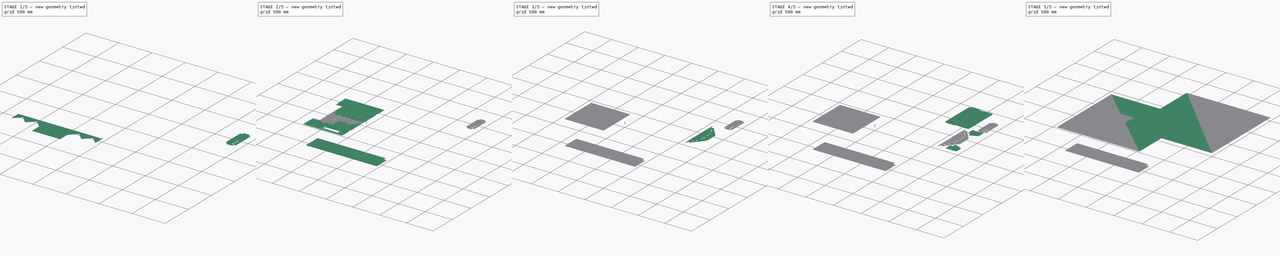
[diagram: build sequence overview — one tinted view per stage of 5, left to right]
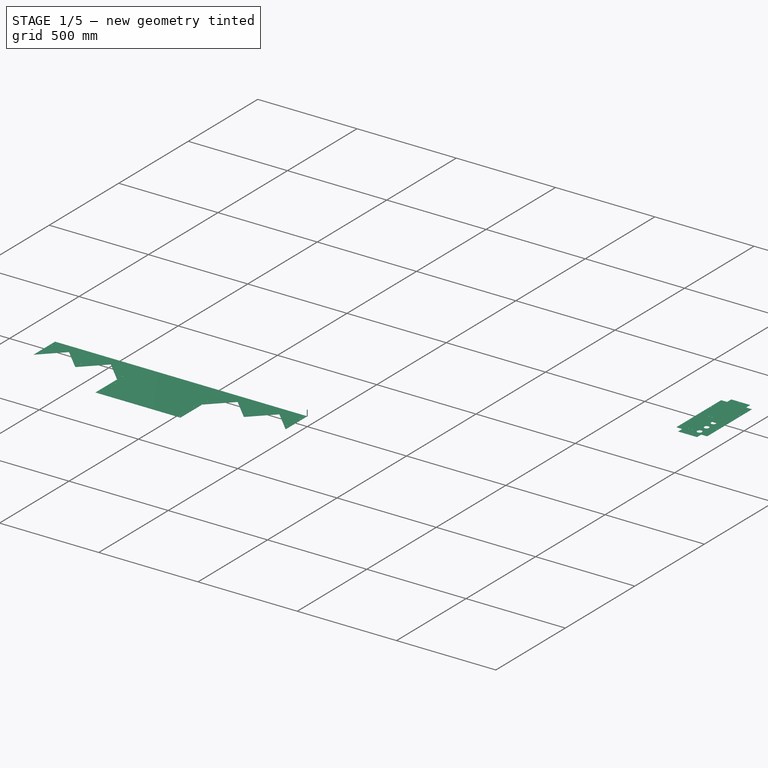
[diagram: stage 1 of 5 — iso view after this stage's code; geometry added in this stage tinted green]
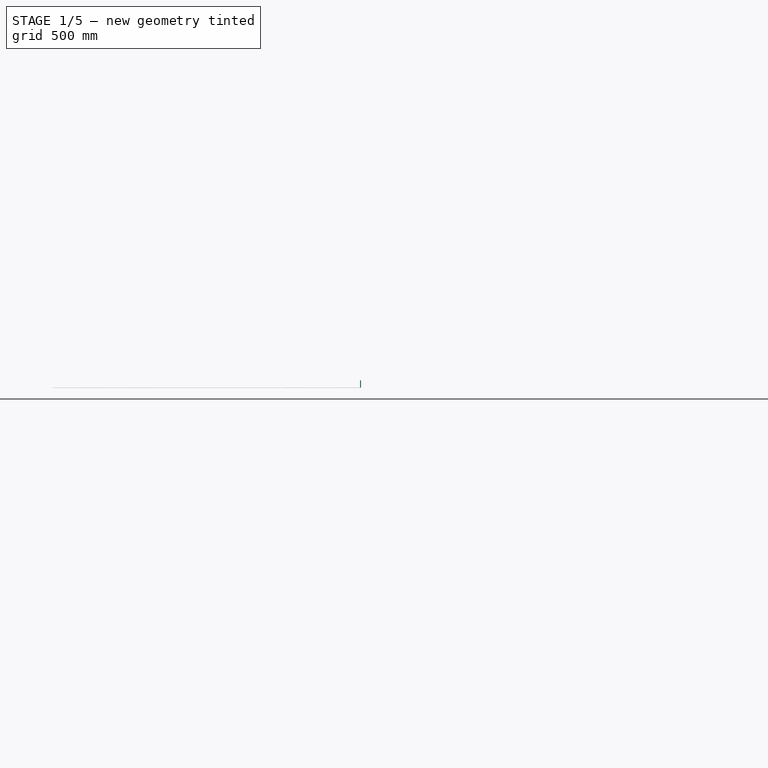
[diagram: stage 1 of 5 — front view after this stage's code; geometry added in this stage tinted green]
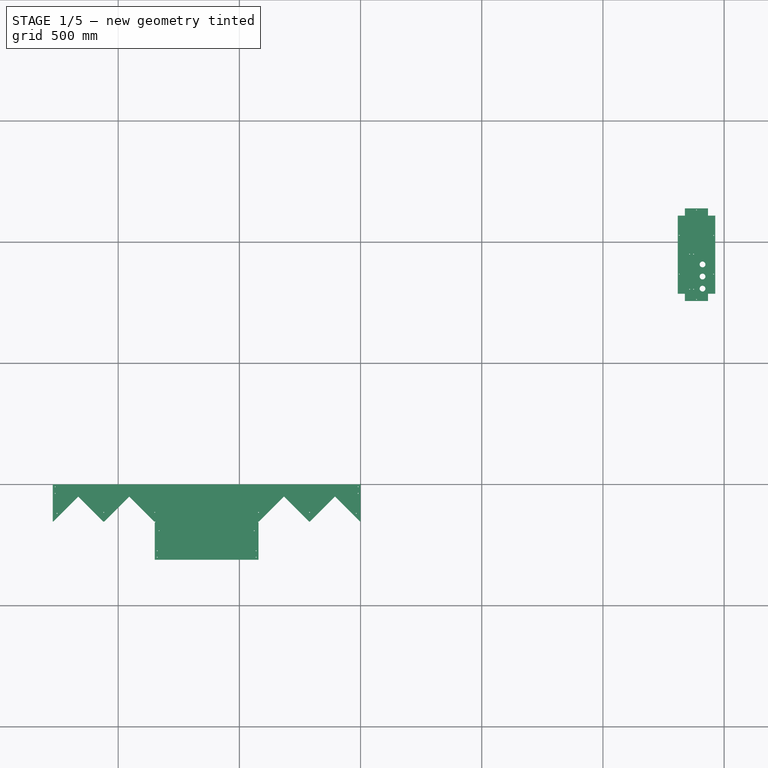
[diagram: stage 1 of 5 — top view after this stage's code; geometry added in this stage tinted green]
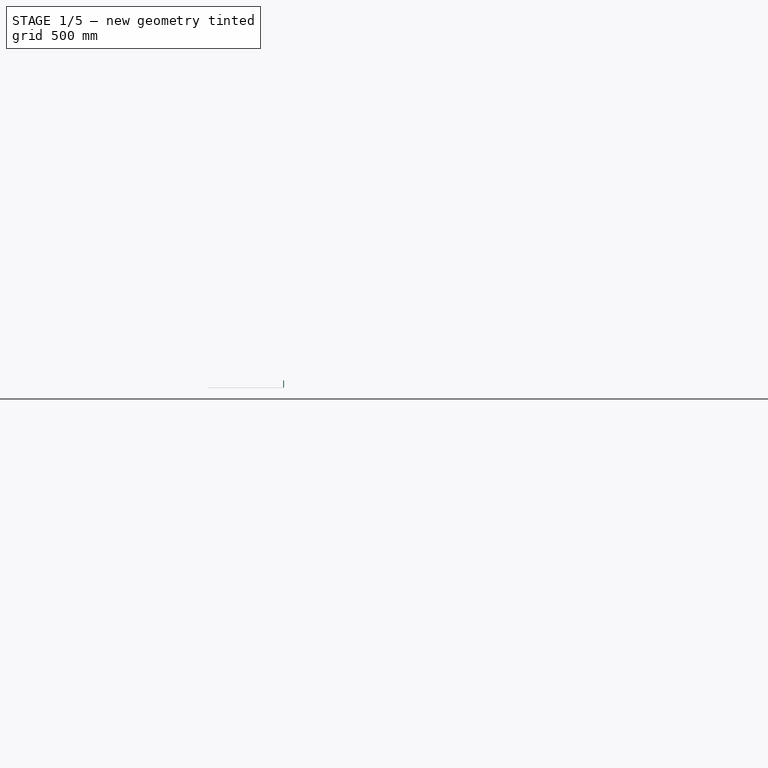
[diagram: stage 1 of 5 — right view after this stage's code; geometry added in this stage tinted green]
FCSTD DOCUMENT  (FreeCAD 0.22R36731 (Git))
Label: composit_stand9_composit_cut
License: All rights reserved
LicenseURL: http://en.wikipedia.org/wiki/All_rights_reserved
objects: App::DocumentObjectGroup×26, Part::FeaturePython×21, Path::FeaturePython×18, Part::Part2DObjectPython×14, App::Link×8, Part::Feature×8, PartDesign::FeatureBase×8, PartDesign::Body×8, Sketcher::SketchObject×7, App::FeaturePython×5, Part::Mirroring×2, PartDesign::SubShapeBinder×1
note: 73 computed .brp shape members not serialized (recipe doc carries the construction recipe); baked Part::Feature solids carry a one-line shape summary decoded from their .brp
EXTERNAL_REF file=composit_stand9.FCStd obj=Body014
EXTERNAL_REF file=composit_stand9.FCStd obj=Body018
EXTERNAL_REF file=composit_stand9.FCStd obj=Body011
EXTERNAL_REF file=composit_stand9.FCStd obj=Body010
EXTERNAL_REF file=composit_stand9.FCStd obj=Body
EXTERNAL_REF file=composit_stand9.FCStd obj=Body006
EXTERNAL_REF file=composit_stand9.FCStd obj=Body021
EXTERNAL_REF file=composit_stand9.FCStd obj=Body001

FEATURE [App::Link] Link  label="bottom_composit"
  LinkedObject = -> <external composit_stand9.FCStd>#Body014
FEATURE [App::Link] Link001  label="electric_shield"
  LinkedObject = -> <external composit_stand9.FCStd>#Body018
FEATURE [App::Link] Link002  label="cap_inner"
  LinkedObject = -> <external composit_stand9.FCStd>#Body011
FEATURE [App::Link] Link003  label="cap_outer"
  LinkedObject = -> <external composit_stand9.FCStd>#Body010
FEATURE [App::Link] Link004  label="face"
  LinkedObject = -> <external composit_stand9.FCStd>#Body
FEATURE [App::Link] Link005  label="dropper_fix_composit"
  LinkedObject = -> <external composit_stand9.FCStd>#Body006
FEATURE [App::Link] Link006  label="front_shield"
  LinkedObject = -> <external composit_stand9.FCStd>#Body021
FEATURE [App::Link] Link007  label="back"
  LinkedObject = -> <external composit_stand9.FCStd>#Body001
FEATURE [App::DocumentObjectGroup] Group  label="parts"
  Group = -> [Link,Link001,Link002,Link003,Link004,Link005,Link006,Link007]
FEATURE [App::FeaturePython] SetupSheet  # Path/CAM operation (typed FeaturePython)
  ClearanceHeightExpression = OpStockZMax+SetupSheet.ClearanceHeightOffset
  ClearanceHeightOffset = 5
  CoolantMode = 0
  CoolantModes = None | Flood | Mist
  FinalDepthExpression = -0.1 mm
  HorizRapid = 0
  ProfileDirection = 1
  ProfileSide = 0
  ProfileUseComp = true
  ProfileprocessCircles = true
  ProfileprocessHoles = true
  ProfileprocessPerimeter = true
  SafeHeightExpression = OpStockZMax+SetupSheet.SafeHeightOffset
  SafeHeightOffset = 3
  StartDepthExpression = 3 mm
  StepDownExpression = 4 mm
  VertRapid = 0
FEATURE [Part::FeaturePython] ToolBit  label="3.175mm Endmill"  # Path/CAM toolbit (typed FeaturePython)
  BitPropertyNames = Chipload | CuttingEdgeHeight | Diameter | Flutes | Length | Material | ShankDiameter | SpindleDirection
  BitShape = <path>
  Chipload = 0
  CuttingEdgeHeight = 30
  Diameter = 3.175
  Flutes = 0
  Length = 10
  Material = 0
  ShankDiameter = 3
  ShapeName = endmill
  SpindleDirection = 0
FEATURE [Part::Feature] Unfold004  label="cap_outer_Unfold"
  Placement = pos=(1.71e-13,0,319.563) rot=(0.707107,0,-0.707107;3.14159rad)
  shape: bbox 310.8 x 1270 x 0.3 mm, 50 faces (baked)
FEATURE [Sketcher::SketchObject] Unfold_Sketch_bends004  label="cap_outer_Unfold_Sketch_bends"
  FullyConstrained = false
  sketch-geometry (10):
    g0: LineSegment StartX=-50.1492 StartY=104.948 StartZ=0 EndX=-50.1492 EndY=-0.0765487 EndZ=0
    g1: LineSegment StartX=-50 StartY=-0.250774 StartZ=0 EndX=0 EndY=-0.250774 EndZ=0
    g2: LineSegment StartX=-260.648 StartY=-315.973 StartZ=0 EndX=-260.648 EndY=-744.149 EndZ=0
    g3: LineSegment StartX=-50.1492 StartY=-210.923 StartZ=0 EndX=-50.1492 EndY=-849.199 EndZ=0
    g4: LineSegment StartX=-50.1492 StartY=-1060.05 StartZ=0 EndX=-50.1492 EndY=-1165.07 EndZ=0
    g5: LineSegment StartX=-50 StartY=-1059.87 StartZ=0 EndX=0 EndY=-1059.87 EndZ=0
    g6: LineSegment StartX=-50.1492 StartY=-849.548 StartZ=0 EndX=-50.1492 EndY=-1059.7 EndZ=0
    g7: LineSegment StartX=-50 StartY=-849.374 StartZ=0 EndX=0 EndY=-849.374 EndZ=0
    g8: LineSegment StartX=-50 StartY=-210.749 StartZ=0 EndX=0 EndY=-210.749 EndZ=0
    g9: LineSegment StartX=-50.1492 StartY=-0.425 StartZ=0 EndX=-50.1492 EndY=-210.575 EndZ=0
FEATURE [PartDesign::FeatureBase] BaseFeature004
  BaseFeature = -> Unfold004
  Placement = pos=(1.71e-13,0,319.563) rot=(0.707107,0,-0.707107;3.14159rad)
  Suppressed = false
  expr: BaseFeature = <<cap_outer_Unfold>>._self
  expr: Placement = .BaseFeature.Placement
FEATURE [Path::FeaturePython] NZV6109016  label="NZV6109017"  # Path/CAM operation (typed FeaturePython)
  HorizFeed = 51.6667
  HorizRapid = 0
  SpindleDir = 0
  SpindleSpeed = 18000
  Tool = -> ToolBit002
  ToolNumber = 2
  VertFeed = 16.6667
  VertRapid = 0
  expr: HorizRapid = SetupSheet002.HorizRapid
  expr: VertRapid = SetupSheet002.VertRapid
FEATURE [App::DocumentObjectGroup] Tools002
  Group = -> [NZV6109016]
FEATURE [App::FeaturePython] SetupSheet003  # Path/CAM operation (typed FeaturePython)
  ClearanceHeightExpression = OpStockZMax+SetupSheet003.ClearanceHeightOffset
  ClearanceHeightOffset = 5
  CoolantMode = 0
  CoolantModes = None | Flood | Mist
  FinalDepthExpression = -0.1 mm
  HorizRapid = 0
  ProfileDirection = 1
  ProfileSide = 0
  ProfileUseComp = true
  ProfileprocessCircles = true
  ProfileprocessHoles = true
  ProfileprocessPerimeter = true
  SafeHeightExpression = OpStockZMax+SetupSheet003.SafeHeightOffset
  SafeHeightOffset = 3
  StartDepthExpression = 3 mm
  StepDownExpression = 4 mm
  VertRapid = 0
FEATURE [Part::FeaturePython] Clone011  label="Model-cap_outer_Body"  # Draft clone (typed FeaturePython)
  AttacherType = Attacher::AttachEngine3D
  Fuse = false
  Objects = -> [Body004]
  PathResource = Model
  Placement = pos=(-1165.07,4.84e-13,0) rot=(0,0,1;1.5708rad)
  Scale = (1,1,1)
FEATURE [App::DocumentObjectGroup] Model003
  Group = -> [Clone011]
FEATURE [Part::FeaturePython] ToolBit003  label="3.175mm Endmill003"  # Path/CAM toolbit (typed FeaturePython)
  BitPropertyNames = Chipload | CuttingEdgeHeight | Diameter | Flutes | Length | Material | ShankDiameter | SpindleDirection
  BitShape = <path>
  Chipload = 0
  CuttingEdgeHeight = 30
  Diameter = 3.175
  Flutes = 0
  Length = 10
  Material = 0
  ShankDiameter = 3
  ShapeName = endmill
  SpindleDirection = 0
FEATURE [Sketcher::SketchObject] Unfold_Sketch_bends  label="bottom_composit_Unfold_Sketch_bends"
  FullyConstrained = false
  sketch-geometry (8):
    g0: LineSegment StartX=310.612 StartY=407.897 StartZ=0 EndX=310.612 EndY=239.897 EndZ=0
    g1: LineSegment StartX=-310.463 StartY=408.046 StartZ=0 EndX=310.463 EndY=408.046 EndZ=0
    g2: LineSegment StartX=-310.612 StartY=407.897 StartZ=0 EndX=-310.612 EndY=239.897 EndZ=0
    g3: LineSegment StartX=-319.563 StartY=211.248 StartZ=0 EndX=319.563 EndY=211.248 EndZ=0
    g4: LineSegment StartX=-319.563 StartY=205.749 StartZ=0 EndX=319.563 EndY=205.749 EndZ=0
    g5: LineSegment StartX=-316.312 StartY=15 StartZ=0 EndX=-316.312 EndY=177 EndZ=0
    g6: LineSegment StartX=-313.563 StartY=3.25077 StartZ=0 EndX=313.563 EndY=3.25077 EndZ=0
    g7: LineSegment StartX=316.312 StartY=15 StartZ=0 EndX=316.312 EndY=177 EndZ=0
FEATURE [Part::Part2DObjectPython] Clone2D003  label="bottom_composit_Unfold_Sketch_bends (2D)"  # Draft 2D object (typed FeaturePython)
  Fuse = false
  Objects = -> [Unfold_Sketch_bends]
  Scale = (1,1,1)
  expr: Objects = <<bottom_composit_Unfold_Sketch_bends>>._self
FEATURE [App::DocumentObjectGroup] Group006  label="bottom_composit_Group"
  Group = -> [Body003,Clone2D003,Unfold,Unfold_Sketch_bends]
FEATURE [Part::Part2DObjectPython] Clone2D008  label="Model-bottom_composit_Unfold_Sketch_bends (2D)"  # Draft 2D object (typed FeaturePython)
  Fuse = false
  Objects = -> [Clone2D003]
  PathResource = Model
  Placement = pos=(752.997,1067.16,6.81e-14) rot=(0,0,-1;1.5708rad)
  Scale = (1,1,1)
  expr: Placement = <<Model-bottom_composit_Body>>.Placement
FEATURE [Part::Feature] Unfold009  label="electric_shield_Unfold"
  shape: bbox 155 x 382 x 0.3 mm, 27 faces (baked)
FEATURE [PartDesign::FeatureBase] BaseFeature002
  BaseFeature = -> Unfold009
  Suppressed = false
  expr: BaseFeature = <<electric_shield_Unfold>>._self
  expr: Placement = .BaseFeature.Placement
FEATURE [PartDesign::Body] Body002  label="electric_shield_Body"
  Group = -> [BaseFeature002]
  Origin = -> Origin002
  Tip = -> BaseFeature002
FEATURE [Part::FeaturePython] Clone002  label="Model-electric_shield_Body"  # Draft clone (typed FeaturePython)
  AttacherType = Attacher::AttachEngine3D
  Fuse = true
  Objects = -> [Body002]
  PathResource = Model
  Placement = pos=(1385.99,947.696,0) rot=(0,0,1;0rad)
  Scale = (1,1,1)
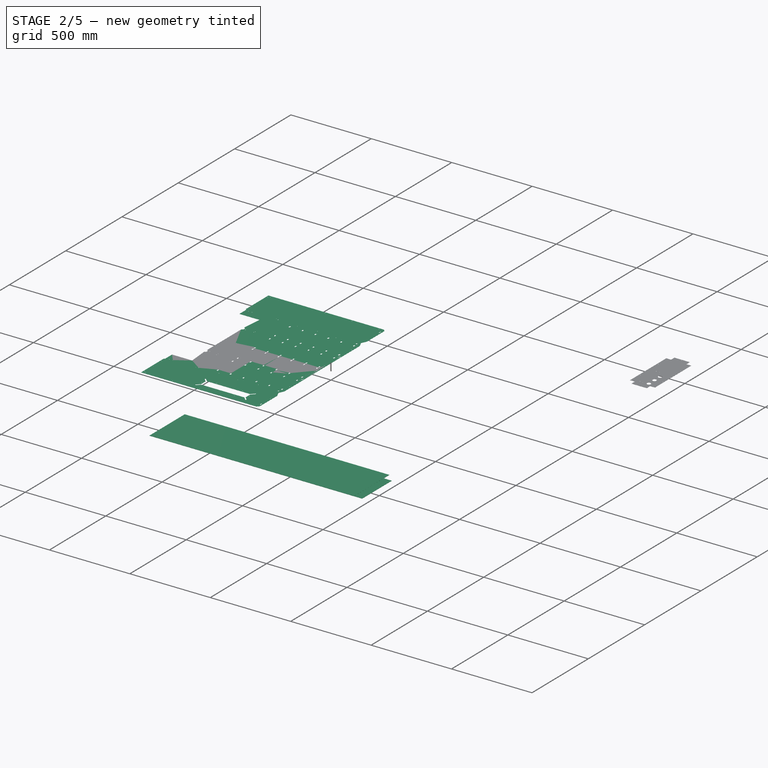
[diagram: stage 2 of 5 — iso view after this stage's code; geometry added in this stage tinted green]
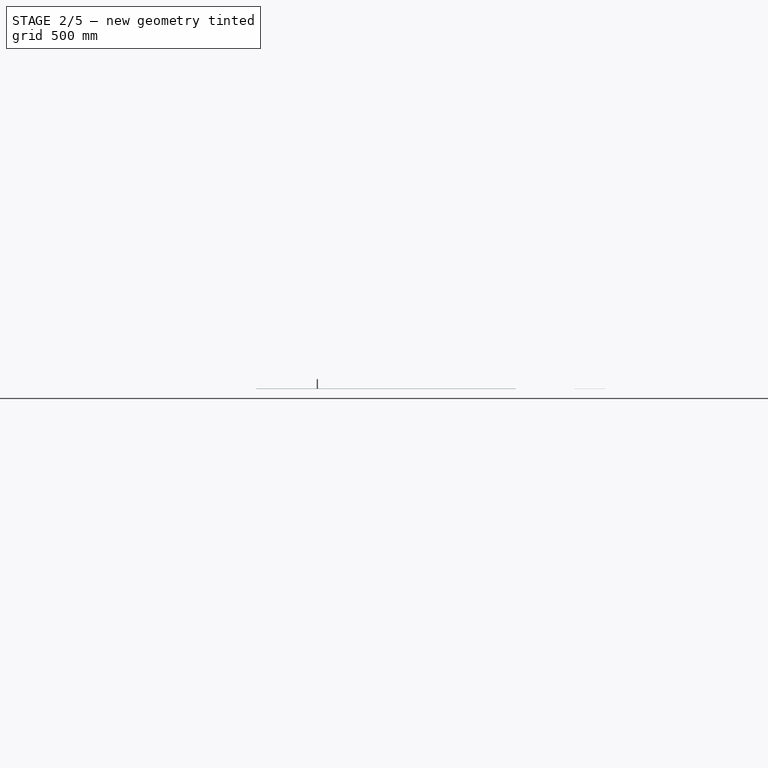
[diagram: stage 2 of 5 — front view after this stage's code; geometry added in this stage tinted green]
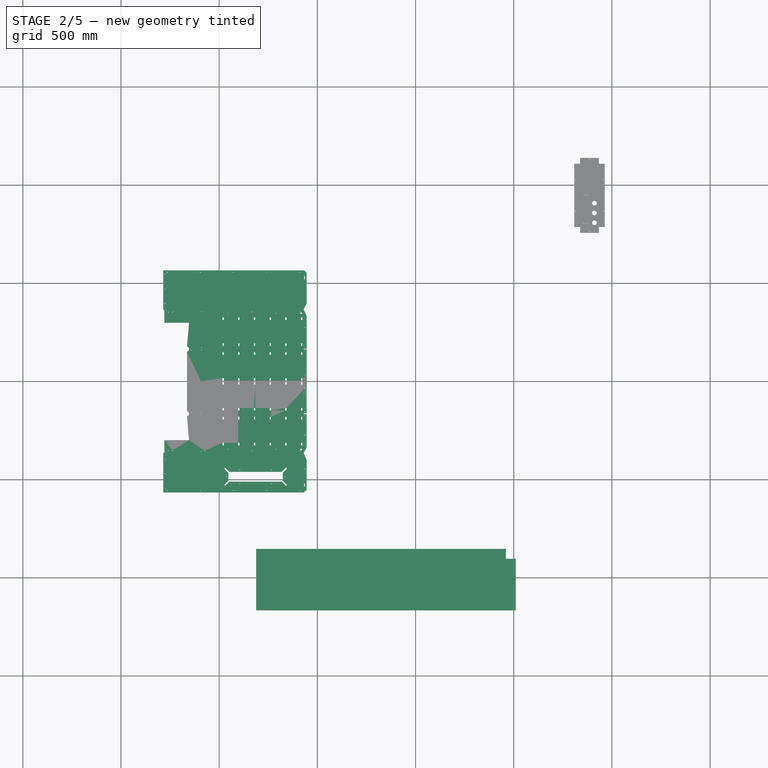
[diagram: stage 2 of 5 — top view after this stage's code; geometry added in this stage tinted green]
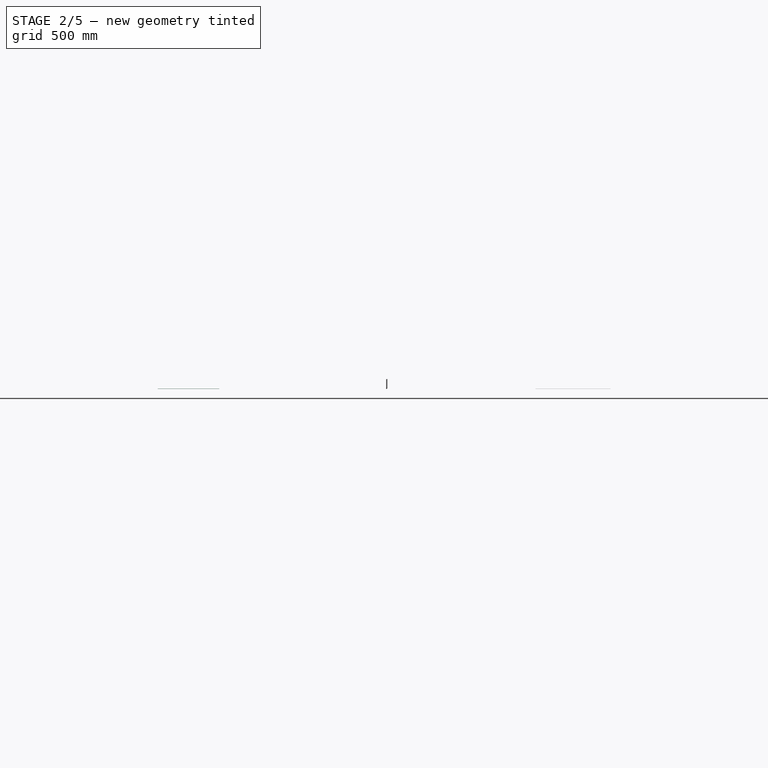
[diagram: stage 2 of 5 — right view after this stage's code; geometry added in this stage tinted green]
FEATURE [Path::FeaturePython] NZV6109015  label="NZV6109016"  # Path/CAM operation (typed FeaturePython)
  HorizFeed = 51.6667
  HorizRapid = 0
  SpindleDir = 0
  SpindleSpeed = 18000
  Tool = -> ToolBit001
  ToolNumber = 2
  VertFeed = 16.6667
  VertRapid = 0
  expr: HorizRapid = SetupSheet001.HorizRapid
  expr: VertRapid = SetupSheet001.VertRapid
FEATURE [App::DocumentObjectGroup] Tools001
  Group = -> [NZV6109015]
FEATURE [App::FeaturePython] SetupSheet002  # Path/CAM operation (typed FeaturePython)
  ClearanceHeightExpression = OpStockZMax+SetupSheet002.ClearanceHeightOffset
  ClearanceHeightOffset = 5
  CoolantMode = 0
  CoolantModes = None | Flood | Mist
  DeburrExtraDepth = 0
  DeburrWidth = 2.7
  FinalDepthExpression = 0.6 mm
  HorizRapid = 0
  ProfileDirection = 1
  ProfileprocessCircles = true
  ProfileprocessHoles = true
  ProfileprocessPerimeter = true
  SafeHeightExpression = OpStockZMax+SetupSheet002.SafeHeightOffset
  SafeHeightOffset = 3
  StartDepthExpression = 3 mm
  StepDownExpression = OpToolDiameter
  VertRapid = 0
FEATURE [Part::FeaturePython] ToolBit002  label="NZV6109018"  # Path/CAM toolbit (typed FeaturePython)
  BitPropertyNames = Chipload | CuttingEdgeAngle | CuttingEdgeHeight | Diameter | Flutes | Length | Material | ShankDiameter | TipDiameter
  BitShape = <path>
  Chipload = 0
  CuttingEdgeAngle = 90
  CuttingEdgeHeight = 4
  Diameter = 10
  Flutes = 0
  Length = 50
  Material = 0
  ShankDiameter = 6
  ShapeName = chamfer
  TipDiameter = 1
FEATURE [Path::FeaturePython] __175mm_Endmill001  label="3.175mm Endmill002"  # Path/CAM operation (typed FeaturePython)
  HorizFeed = 33.3333
  HorizRapid = 0
  SpindleDir = 0
  SpindleSpeed = 18000
  Tool = -> ToolBit003
  ToolNumber = 1
  VertFeed = 8.33333
  VertRapid = 0
  expr: HorizRapid = SetupSheet003.HorizRapid
  expr: VertRapid = SetupSheet003.VertRapid
FEATURE [App::DocumentObjectGroup] Tools003
  Group = -> [__175mm_Endmill001]
FEATURE [Part::FeaturePython] Stock003  # WARN: FeaturePython — macro-defined, semantics opaque (R4)
  Base = -> Model003
  ExtXneg = 1
  ExtXpos = 1
  ExtYneg = 1
  ExtYpos = 1
  ExtZneg = 0
  ExtZpos = 1
  Placement = pos=(-310.797,-1165.07,-2.28e-13) rot=(0,0,1;0rad)
  StockType = FromBase
FEATURE [App::FeaturePython] SetupSheet004  # Path/CAM operation (typed FeaturePython)
  ClearanceHeightExpression = OpStockZMax+SetupSheet004.ClearanceHeightOffset
  ClearanceHeightOffset = 5
  CoolantMode = 0
  CoolantModes = None | Flood | Mist
  DeburrExtraDepth = 0
  DeburrWidth = 2.7
  FinalDepthExpression = 0.6 mm
  HorizRapid = 0
  ProfileDirection = 1
  ProfileprocessCircles = true
  ProfileprocessHoles = true
  ProfileprocessPerimeter = true
  SafeHeightExpression = OpStockZMax+SetupSheet004.SafeHeightOffset
  SafeHeightOffset = 3
  StartDepthExpression = 3 mm
  StepDownExpression = OpToolDiameter
  VertRapid = 0
FEATURE [Part::Part2DObjectPython] Clone2D013  label="Model-cap_outer_Unfold_Sketch_bends (2D)"  # Draft 2D object (typed FeaturePython)
  Fuse = false
  Objects = -> [Clone2D004]
  PathResource = Model
  Placement = pos=(-1165.07,4.84e-13,0) rot=(0,0,1;1.5708rad)
  Scale = (1,1,1)
  expr: Placement = <<Model-cap_outer_Body>>.Placement
FEATURE [App::DocumentObjectGroup] Model004
  Group = -> [Clone2D013]
FEATURE [Part::FeaturePython] ToolBit004  label="NZV6109020"  # Path/CAM toolbit (typed FeaturePython)
  BitPropertyNames = Chipload | CuttingEdgeAngle | CuttingEdgeHeight | Diameter | Flutes | Length | Material | ShankDiameter | TipDiameter
  BitShape = <path>
  Chipload = 0
  CuttingEdgeAngle = 90
  CuttingEdgeHeight = 4
  Diameter = 10
  Flutes = 0
  Length = 50
  Material = 0
  ShankDiameter = 6
  ShapeName = chamfer
  TipDiameter = 1
FEATURE [Path::FeaturePython] NZV6109017  label="NZV6109019"  # Path/CAM operation (typed FeaturePython)
  HorizFeed = 51.6667
  HorizRapid = 0
  SpindleDir = 0
  SpindleSpeed = 18000
  Tool = -> ToolBit004
  ToolNumber = 2
  VertFeed = 16.6667
  VertRapid = 0
  expr: HorizRapid = SetupSheet004.HorizRapid
  expr: VertRapid = SetupSheet004.VertRapid
FEATURE [App::DocumentObjectGroup] Tools004
  Group = -> [NZV6109017]
FEATURE [Part::FeaturePython] Stock004  # WARN: FeaturePython — macro-defined, semantics opaque (R4)
  Base = -> Model004
  ExtXneg = 1
  ExtXpos = 1
  ExtYneg = 1
  ExtYpos = 1
  ExtZneg = 0
  ExtZpos = 1
  Placement = pos=(-260.648,-1165.07,0) rot=(0,0,1;0rad)
  StockType = FromBase
FEATURE [Path::FeaturePython] Engrave003  # Path/CAM operation (typed FeaturePython)
  Active = true
  BaseShapes = -> [Clone2D013]
  ClearanceHeight = 6
  CoolantMode = 0
  CycleTime = 00:01:58
  FinalDepth = 0.5
  OpFinalDepth = -10
  OpStartDepth = 0
  OpStockZMax = 1
  OpStockZMin = 0
  OpToolDiameter = 10
  SafeHeight = 4
  StartDepth = 3
  StartVertex = 0
  StepDown = 10
  ToolController = -> NZV6109017
  expr: BaseShapes = <<Model004>>.Group
  expr: ClearanceHeight = OpStockZMax + SetupSheet004.ClearanceHeightOffset
  expr: SafeHeight = OpStockZMax + SetupSheet004.SafeHeightOffset
  expr: StartDepth = 3 mm
  expr: StepDown = OpToolDiameter
FEATURE [App::DocumentObjectGroup] Operations004
  Group = -> [Engrave003]
FEATURE [Path::FeaturePython] Job004  # Path/CAM operation (typed FeaturePython)
  CycleTime = 00:01:58
  Fixtures = G54
  GeometryTolerance = 0.01
  JobType = 0
  LastPostProcessDate = 2024-04-04 15:12:51.897997
  LastPostProcessOutput = <path>
  Model = -> Model004
  Operations = -> Operations004
  OrderOutputBy = 0
  PostProcessor = 3
  PostProcessorOutputFile = <path>/%j.tap
  SetupSheet = -> SetupSheet004
  SplitOutput = false
  Stock = -> Stock004
  Tools = -> Tools004
FEATURE [Path::FeaturePython] Profile002  # Path/CAM operation (typed FeaturePython)
  Active = true
  AreaParams:
    Tolerance = 1e-07
    FitArcs = True
    Simplify = False
    CleanDistance = 0.0
    Accuracy = 0.01
    Unit = 1.0
    MinArcPoints = 4
    MaxArcPoints = 100
    ClipperScale = 10000000.0
    Fill = 0
    Coplanar = 0
    Reorient = True
    Outline = False
    Explode = False
    OpenMode = 0
    Deflection = 0.01
    SubjectFill = 0
    ClipFill = 0
    Offset = -1.5875
    ExtraPass = 0
    Stepover = 0.0
    LastStepover = 0.0
    JoinType = 0
    EndType = 0
    MiterLimit = 2.0
    RoundPrecision = 0.0
    PocketMode = 0
    ToolRadius = 1.0
    PocketExtraOffset = 0.0
    PocketStepover = 0.0
    PocketLastStepover = 0.0
    FromCenter = False
    Angle = 45.0
    AngleShift = 0.0
    Shift = 0.0
    Thicken = False
    SectionCount = -1
    Stepdown = 1.0
    SectionOffset = 0.0
    SectionTolerance = 1e-06
    SectionMode = 2
    Project = False
  Base = -> [Clone011]
  ClearanceHeight = 6.3
  CoolantMode = 0
  CycleTime = 00:01:20
  Direction = 1
  FinalDepth = -0.1
  HandleMultipleFeatures = 0
  JoinType = 0
  MiterLimit = 0.1
  OffsetExtra = 0
  OpFinalDepth = -2.28e-13
  OpStartDepth = 1.3
  OpStockZMax = 1.3
  OpStockZMin = -2.28e-13
  OpToolDiameter = 3.175
  PathParams = {'orientation': 1, 'feedrate': 33.333333333333336, 'feedrate_v': 8.333333333333334, 'verbose': True, 'resume_height': 4.300000000000012, 'retraction': 6.300000000000012, 'return_end': True, 'preamble': False, 'start': Vector (-1260.009845601811, -37.1032794160127, 6.300000000000012)}
  SafeHeight = 4.3
  Side = 0
  SplitArcs = false
  StartDepth = 3
  StartPoint = (0,0,0)
  StepDown = 4
  ToolController = -> __175mm_Endmill001
  UseComp = true
  UseStartPoint = false
  processCircles = true
  processHoles = true
  processPerimeter = false
  expr: ClearanceHeight = OpStockZMax + SetupSheet003.ClearanceHeightOffset
  expr: FinalDepth = -0.1 mm
  expr: SafeHeight = OpStockZMax + SetupSheet003.SafeHeightOffset
  expr: Side = 0
  expr: StartDepth = 3 mm
  expr: StepDown = 4 mm
FEATURE [Path::FeaturePython] Profile003  # Path/CAM operation (typed FeaturePython)
  Active = true
  AreaParams:
    Tolerance = 1e-07
    FitArcs = True
    Simplify = False
    CleanDistance = 0.0
    Accuracy = 0.01
    Unit = 1.0
    MinArcPoints = 4
    MaxArcPoints = 100
    ClipperScale = 10000000.0
    Fill = 0
    Coplanar = 0
    Reorient = True
    Outline = False
    Explode = False
    OpenMode = 0
    Deflection = 0.01
    SubjectFill = 0
    ClipFill = 0
    Offset = 1.5875
    ExtraPass = 0
    Stepover = 0.0
    LastStepover = 0.0
    JoinType = 0
    EndType = 0
    MiterLimit = 2.0
    RoundPrecision = 0.0
    PocketMode = 0
    ToolRadius = 1.0
    PocketExtraOffset = 0.0
    PocketStepover = 0.0
    PocketLastStepover = 0.0
    FromCenter = False
    Angle = 45.0
    AngleShift = 0.0
    Shift = 0.0
    Thicken = False
    SectionCount = -1
    Stepdown = 1.0
    SectionOffset = 0.0
    SectionTolerance = 1e-06
    SectionMode = 2
    Project = False
  Base = -> [Clone011]
  ClearanceHeight = 6.3
  CoolantMode = 0
  CycleTime = 00:01:47
  Direction = 1
  FinalDepth = -0.1
  HandleMultipleFeatures = 0
  JoinType = 0
  MiterLimit = 0.1
  OffsetExtra = 0
  OpFinalDepth = -2.28e-13
  OpStartDepth = 1.3
  OpStockZMax = 1.3
  OpStockZMin = -2.28e-13
  OpToolDiameter = 3.175
  PathParams:
    orientation = 0
    feedrate = 33.333333333333336
    feedrate_v = 8.333333333333334
    verbose = True
    resume_height = 4.300000000000012
    retraction = 6.300000000000012
    return_end = True
    preamble = False
  SafeHeight = 4.3
  Side = 0
  SplitArcs = false
  StartDepth = 3
  StartPoint = (0,0,0)
  StepDown = 4
  ToolController = -> __175mm_Endmill001
  UseComp = true
  UseStartPoint = false
  processCircles = false
  processHoles = false
  processPerimeter = true
  expr: Base = <<Profile002>>.Base
  expr: ClearanceHeight = OpStockZMax + SetupSheet003.ClearanceHeightOffset
  expr: FinalDepth = -0.1 mm
  expr: SafeHeight = OpStockZMax + SetupSheet003.SafeHeightOffset
  expr: Side = 0
  expr: StartDepth = 3 mm
  expr: StepDown = 4 mm
FEATURE [App::DocumentObjectGroup] Operations003
  Group = -> [Profile002,Profile003]
FEATURE [Path::FeaturePython] Job003  # Path/CAM operation (typed FeaturePython)
  CycleTime = 00:03:07
  Fixtures = G54
  GeometryTolerance = 0.01
  JobType = 0
  LastPostProcessDate = 2024-04-04 15:12:44.968083
  LastPostProcessOutput = <path> \n/mnt/flash/Job003-1.tap
  Model = -> Model003
  Operations = -> Operations003
  OrderOutputBy = 2
  PostProcessor = 3
  PostProcessorOutputFile = <path>/%j.tap
  SetupSheet = -> SetupSheet003
  SplitOutput = true
  Stock = -> Stock003
  Tools = -> Tools003
FEATURE [Part::Feature] Unfold008  label="face_Unfold"
  Placement = pos=(-3.7403e-11,2.27e-13,715.4) rot=(0.707107,-0.707107,0;3.14159rad)
  shape: bbox 729.9 x 1131 x 0.302 mm, 345 faces (baked)
FEATURE [PartDesign::FeatureBase] BaseFeature
  BaseFeature = -> Unfold008
  Placement = pos=(-3.7403e-11,2.27e-13,715.4) rot=(0.707107,-0.707107,0;3.14159rad)
  Suppressed = false
  expr: BaseFeature = <<face_Unfold>>._self
  expr: Placement = .BaseFeature.Placement
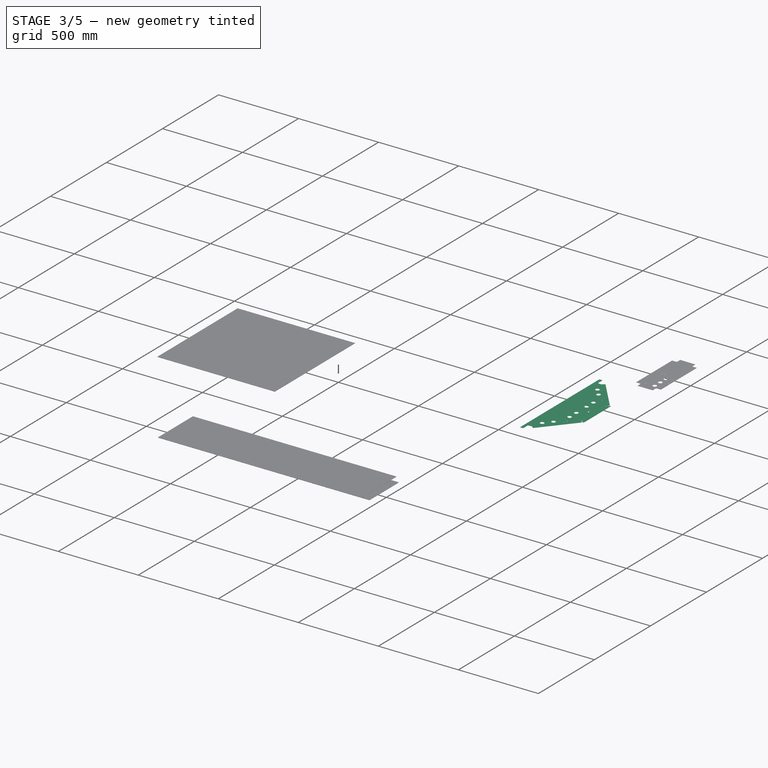
[diagram: stage 3 of 5 — iso view after this stage's code; geometry added in this stage tinted green]
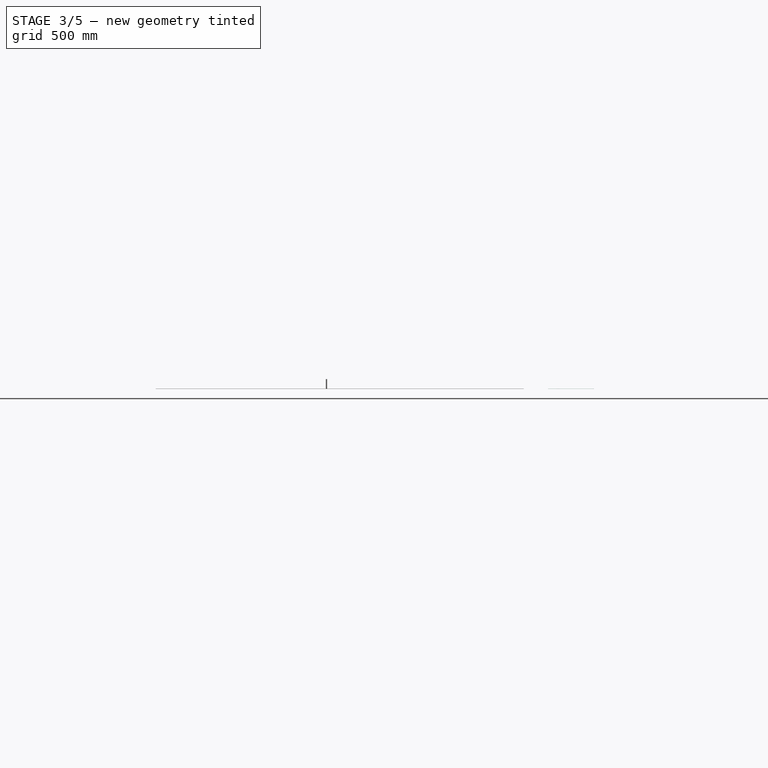
[diagram: stage 3 of 5 — front view after this stage's code; geometry added in this stage tinted green]
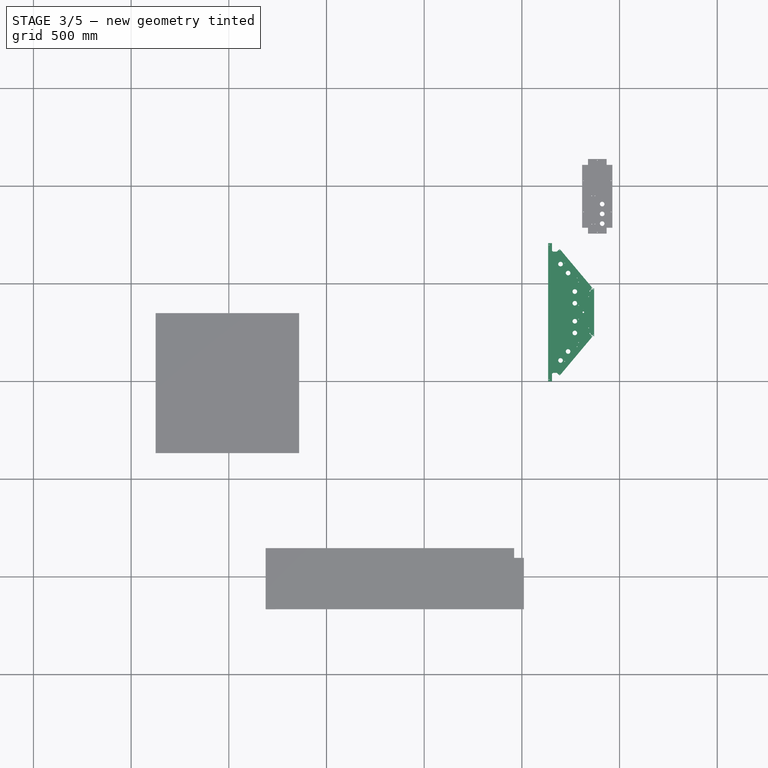
[diagram: stage 3 of 5 — top view after this stage's code; geometry added in this stage tinted green]
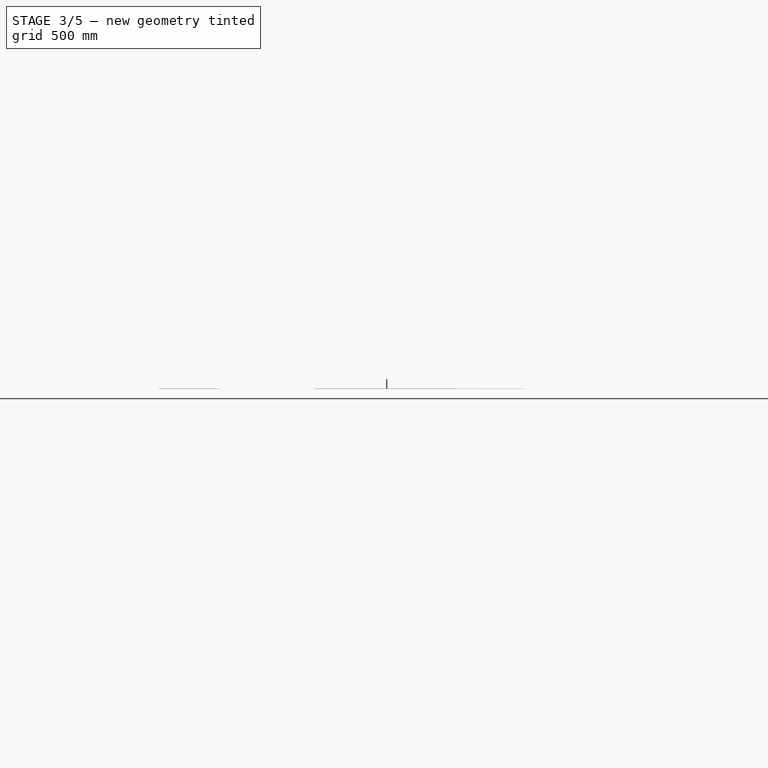
[diagram: stage 3 of 5 — right view after this stage's code; geometry added in this stage tinted green]
FEATURE [PartDesign::Body] Body004  label="cap_outer_Body"
  BaseFeature = -> Unfold004
  Group = -> [BaseFeature004]
  Origin = -> Origin004
  Tip = -> BaseFeature004
FEATURE [Part::Part2DObjectPython] Clone2D004  label="cap_outer_Unfold_Sketch_bends (2D)"  # Draft 2D object (typed FeaturePython)
  Fuse = false
  Objects = -> [Unfold_Sketch_bends004]
  Scale = (1,1,1)
  expr: Objects = <<cap_outer_Unfold_Sketch_bends>>._self
FEATURE [App::DocumentObjectGroup] Group007  label="cap_outer_Group"
  Group = -> [Body004,Clone2D004,Unfold004,Unfold_Sketch_bends004]
FEATURE [Part::Feature] Unfold005  label="cap_inner_Unfold"
  Placement = pos=(0,0,47.4) rot=(0,1,0;3.14159rad)
  shape: bbox 179.9 x 196.9 x 0.3 mm, 31 faces (baked)
FEATURE [Sketcher::SketchObject] Unfold_Sketch_bends005  label="cap_inner_Unfold_Sketch_bends"
  FullyConstrained = false
  sketch-geometry (2):
    g0: LineSegment StartX=-316.312 StartY=3.4 StartZ=0 EndX=-316.312 EndY=150 EndZ=0
    g1: LineSegment StartX=-189.963 StartY=3.25077 StartZ=0 EndX=-313.563 EndY=3.25077 EndZ=0
FEATURE [PartDesign::FeatureBase] BaseFeature005
  BaseFeature = -> Unfold005
  Placement = pos=(0,0,47.4) rot=(0,1,0;3.14159rad)
  Suppressed = false
  expr: BaseFeature = <<cap_inner_Unfold>>._self
  expr: Placement = .BaseFeature.Placement
FEATURE [App::FeaturePython] SetupSheet001  # Path/CAM operation (typed FeaturePython)
  ClearanceHeightExpression = OpStockZMax+SetupSheet001.ClearanceHeightOffset
  ClearanceHeightOffset = 5
  CoolantMode = 0
  CoolantModes = None | Flood | Mist
  DeburrExtraDepth = 0
  DeburrWidth = 2.7
  FinalDepthExpression = 0.6 mm
  HorizRapid = 0
  ProfileDirection = 1
  ProfileprocessCircles = true
  ProfileprocessHoles = true
  ProfileprocessPerimeter = true
  SafeHeightExpression = OpStockZMax+SetupSheet001.SafeHeightOffset
  SafeHeightOffset = 3
  StartDepthExpression = 3 mm
  StepDownExpression = OpToolDiameter
  VertRapid = 0
FEATURE [Part::Part2DObjectPython] Clone2D009  label="Model-cap_inner_Unfold_Sketch_bends (2D)"  # Draft 2D object (typed FeaturePython)
  Fuse = false
  Objects = -> [Clone2D005]
  PathResource = Model
  Placement = pos=(1321.51,-189.563,5.38e-14) rot=(0,0,-1;1.5708rad)
  Scale = (1,1,1)
  expr: Placement = <<Model-cap_inner_Body>>.Placement
FEATURE [Part::FeaturePython] Clone009  label="Model-cap_inner_Unfold_Sketch_bends (2D) (Mirror #2)"  # Draft clone (typed FeaturePython)
  AttacherType = Attacher::AttachEngine3D
  Fuse = false
  Objects = -> [Part__Mirroring001]
  PathResource = Model
  Placement = pos=(1284.29,943.06,0) rot=(0,0,1;1.5708rad)
  Scale = (1,1,1)
  expr: Placement = <<Model-cap_inner_Body (Mirror #1)>>.Placement
FEATURE [Part::FeaturePython] ToolBit001  label="NZV6109015"  # Path/CAM toolbit (typed FeaturePython)
  BitPropertyNames = Chipload | CuttingEdgeAngle | CuttingEdgeHeight | Diameter | Flutes | Length | Material | ShankDiameter | TipDiameter
  BitShape = <path>
  Chipload = 0
  CuttingEdgeAngle = 90
  CuttingEdgeHeight = 4
  Diameter = 10
  Flutes = 0
  Length = 50
  Material = 0
  ShankDiameter = 6
  ShapeName = chamfer
  TipDiameter = 1
FEATURE [PartDesign::Body] Body  label="face_Body"
  Group = -> [BaseFeature]
  Origin = -> Origin
  Tip = -> BaseFeature
FEATURE [Part::FeaturePython] Clone003  label="Model-face_Body"  # Draft clone (typed FeaturePython)
  AttacherType = Attacher::AttachEngine3D
  Fuse = true
  Objects = -> [Body]
  PathResource = Model
  Placement = pos=(565.654,-55,0) rot=(0,0,-1;1.5708rad)
  Scale = (1,1,1)
FEATURE [Sketcher::SketchObject] Unfold_Sketch_bends007  label="face_Unfold_Sketch_bends"
  FullyConstrained = false
  sketch-geometry (13):
    g0: LineSegment StartX=-69.7492 StartY=365.748 StartZ=0 EndX=-69.7492 EndY=166.395 EndZ=0
    g1: LineSegment StartX=-69.7492 StartY=565.654 StartZ=0 EndX=-69.7492 EndY=366.845 EndZ=0
    g2: LineSegment StartX=-69.8985 StartY=366.297 StartZ=0 EndX=-784.898 EndY=366.297 EndZ=0
    g3: LineSegment StartX=-69.8985 StartY=164.665 StartZ=0 EndX=-653.898 EndY=164.665 EndZ=0
    g4: LineSegment StartX=-69.7492 StartY=-366.845 StartZ=0 EndX=-69.7492 EndY=-565.654 EndZ=0
    g5: LineSegment StartX=-161.398 StartY=-530.505 StartZ=0 EndX=-468.398 EndY=-530.505 EndZ=0
    g6: LineSegment StartX=-156.548 StartY=-445.654 StartZ=0 EndX=-156.548 EndY=-525.654 EndZ=0
    g7: LineSegment StartX=-468.398 StartY=-440.804 StartZ=0 EndX=-161.398 EndY=-440.804 EndZ=0
    g8: LineSegment StartX=-473.249 StartY=-525.654 StartZ=0 EndX=-473.249 EndY=-445.654 EndZ=0
    g9: LineSegment StartX=-69.8985 StartY=-366.297 StartZ=0 EndX=-784.898 EndY=-366.297 EndZ=0
    g10: LineSegment StartX=-69.7492 StartY=-166.395 StartZ=0 EndX=-69.7492 EndY=-365.748 EndZ=0
    g11: LineSegment StartX=-69.8985 StartY=-164.665 StartZ=0 EndX=-653.898 EndY=-164.665 EndZ=0
    g12: LineSegment StartX=-69.7492 StartY=162.935 StartZ=0 EndX=-69.7492 EndY=-162.935 EndZ=0
FEATURE [Part::Part2DObjectPython] Clone2D  label="face_Unfold_Sketch_bends (2D)"  # Draft 2D object (typed FeaturePython)
  Fuse = false
  Objects = -> [Unfold_Sketch_bends007]
  Scale = (1,1,1)
  expr: Objects = <<face_Unfold_Sketch_bends>>._self
FEATURE [Part::Part2DObjectPython] Clone2D012  label="Model-face_Unfold_Sketch_bends (2D)"  # Draft 2D object (typed FeaturePython)
  Fuse = false
  Objects = -> [Clone2D]
  PathResource = Model
  Placement = pos=(565.654,-55,0) rot=(0,0,-1;1.5708rad)
  Scale = (1,1,1)
  expr: Placement = <<Model-face_Body>>.Placement
FEATURE [PartDesign::SubShapeBinder] Binder  label="face_110"
  BindCopyOnChange = 0
  BindMode = 0
  ClaimChildren = false
  Fuse = false
  MakeFace = true
  OffsetFill = false
  OffsetIntersection = false
  OffsetJoinType = 0
  OffsetOpenResult = false
  PartialLoad = false
  Relative = true
  Support = -> [Unfold_Sketch_bends007[Edge10,Edge3]]
  _Version = 2
FEATURE [App::DocumentObjectGroup] Group003  label="face_Group"
  Group = -> [Body,Clone2D,Unfold008,Unfold_Sketch_bends007,Binder]
FEATURE [Part::FeaturePython] Clone010  label="Model-Binder"  # Draft clone (typed FeaturePython)
  AttacherType = Attacher::AttachEngine3D
  Fuse = false
  Objects = -> [Binder]
  PathResource = Model
  Placement = pos=(565.654,-55,0) rot=(0,0,-1;1.5708rad)
  Scale = (1,1,1)
  expr: Objects = <<face_110>>._self
  expr: Placement = <<Model-face_Unfold_Sketch_bends (2D)>>.Placement
FEATURE [App::DocumentObjectGroup] Model002
  Group = -> [Clone010]
FEATURE [Part::FeaturePython] Stock002  # WARN: FeaturePython — macro-defined, semantics opaque (R4)
  Base = -> Model002
  ExtXneg = 1
  ExtXpos = 1
  ExtYneg = 1
  ExtYpos = 1
  ExtZneg = 0
  ExtZpos = 1
  Placement = pos=(-873.898,-366.297,0) rot=(0,0,1;0rad)
  StockType = FromBase
FEATURE [Sketcher::SketchObject] Unfold_Sketch_bends008  label="electric_shield_Unfold_Sketch_bends"
  FullyConstrained = false
  Placement = pos=(0,0,0) rot=(0,0,1;3.14159rad)
  sketch-geometry (4):
    g0: LineSegment StartX=47.7492 StartY=-161.1 StartZ=0 EndX=47.7492 EndY=161.1 EndZ=0
    g1: LineSegment StartX=-47.6 StartY=-161.249 StartZ=0 EndX=47.6 EndY=-161.249 EndZ=0
    g2: LineSegment StartX=47.6 StartY=161.249 StartZ=0 EndX=-47.6 EndY=161.249 EndZ=0
    g3: LineSegment StartX=-47.7492 StartY=161.1 StartZ=0 EndX=-47.7492 EndY=-161.1 EndZ=0
FEATURE [Part::Part2DObjectPython] Clone2D002  label="electric_shield_Unfold_Sketch_bends (2D)"  # Draft 2D object (typed FeaturePython)
  Fuse = false
  Objects = -> [Unfold_Sketch_bends008]
  Placement = pos=(0,0,0) rot=(0,0,1;3.14159rad)
  Scale = (1,1,1)
  expr: Objects = <<electric_shield_Unfold_Sketch_bends>>._self
FEATURE [App::DocumentObjectGroup] Group005  label="electric_shield_Group"
  Group = -> [Body002,Clone2D002,Unfold009,Unfold_Sketch_bends008]
FEATURE [Part::Part2DObjectPython] Clone2D011  label="Model-electric_shield_Unfold_Sketch_bends (2D)"  # Draft 2D object (typed FeaturePython)
  Fuse = false
  Objects = -> [Clone2D002]
  PathResource = Model
  Placement = pos=(1385.99,947.696,0) rot=(0,0,1;0rad)
  Scale = (1,1,1)
  expr: Placement = <<Model-electric_shield_Body>>.Placement
FEATURE [Part::Feature] Unfold011  label="dropper_fix_composit_Unfold"
  shape: bbox 708 x 235.2 x 0.3 mm, 55 faces (baked)
FEATURE [PartDesign::FeatureBase] BaseFeature006
  BaseFeature = -> Unfold011
  Suppressed = false
  expr: BaseFeature = <<dropper_fix_composit_Unfold>>._self
  expr: Placement = .BaseFeature.Placement
FEATURE [PartDesign::Body] Body006  label="dropper_fix_composit_Body"
  Group = -> [BaseFeature006]
  Origin = -> Origin006
  Tip = -> BaseFeature006
FEATURE [Part::FeaturePython] Clone007  label="Model-dropper_fix_composit_Body"  # Draft clone (typed FeaturePython)
  AttacherType = Attacher::AttachEngine3D
  Fuse = true
  Objects = -> [Body006]
  PathResource = Model
  Placement = pos=(1284.81,353.979,1.45e-13) rot=(0,0,1;1.5708rad)
  Scale = (1,1,1)
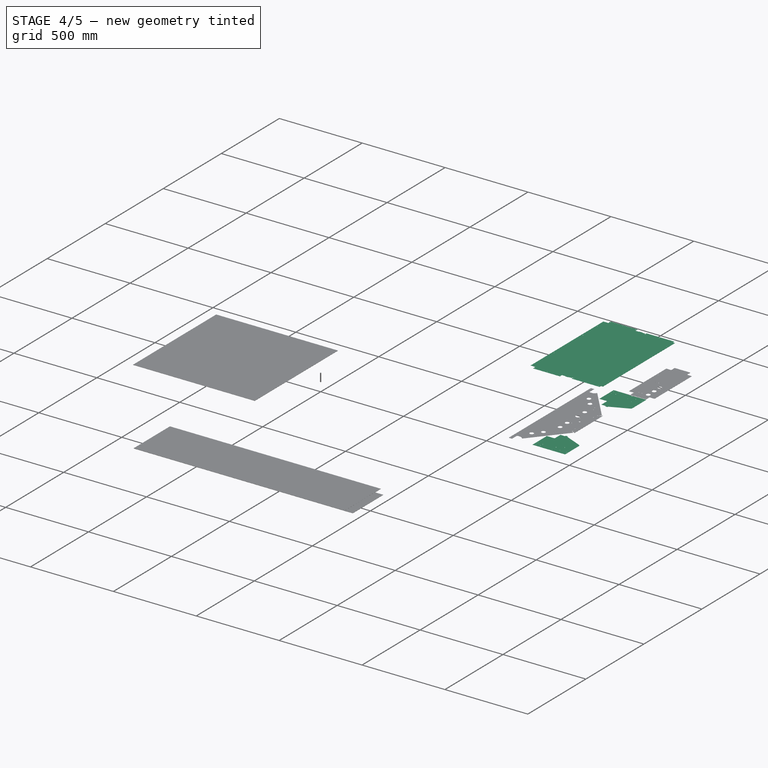
[diagram: stage 4 of 5 — iso view after this stage's code; geometry added in this stage tinted green]
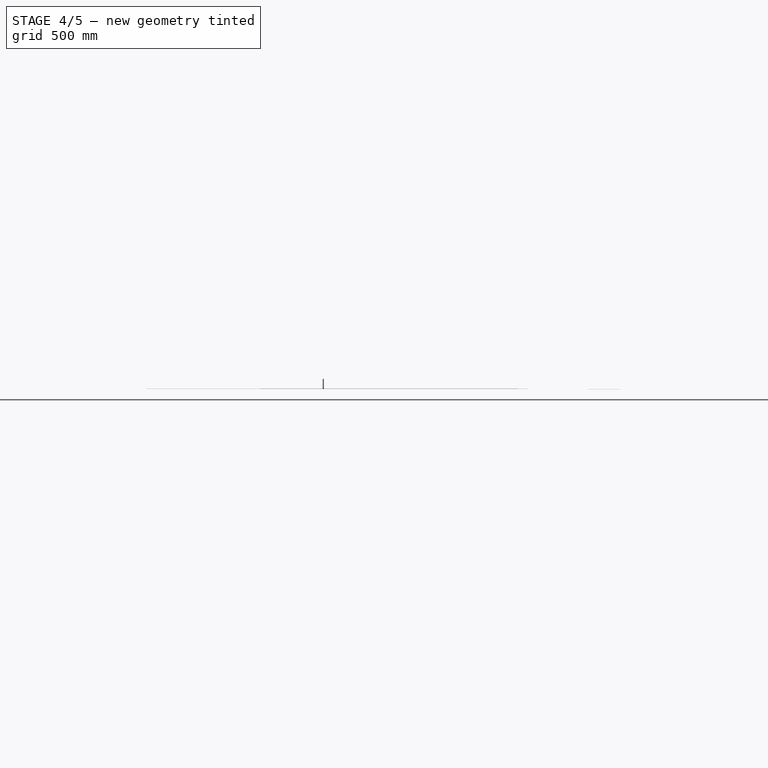
[diagram: stage 4 of 5 — front view after this stage's code; geometry added in this stage tinted green]
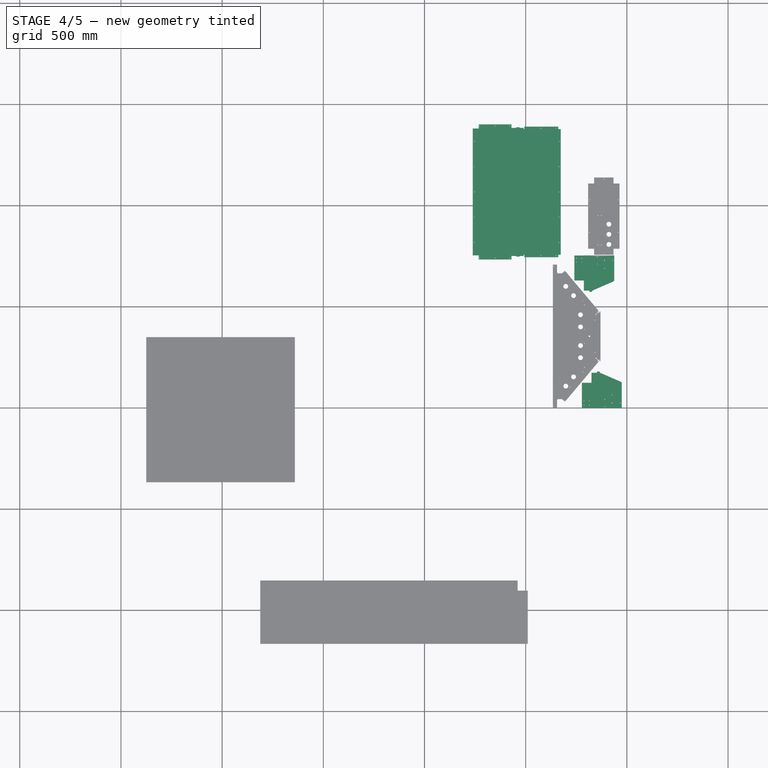
[diagram: stage 4 of 5 — top view after this stage's code; geometry added in this stage tinted green]
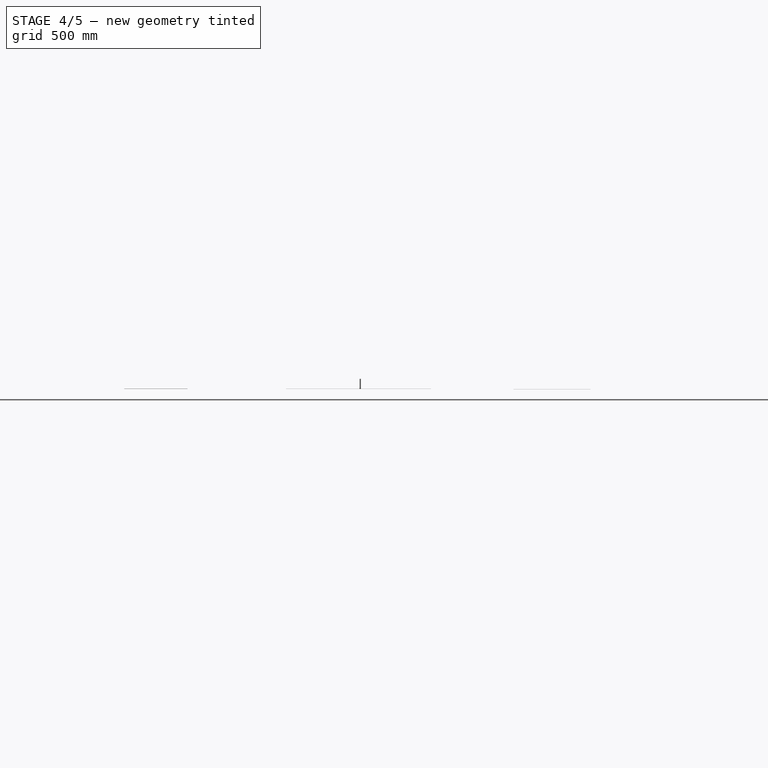
[diagram: stage 4 of 5 — right view after this stage's code; geometry added in this stage tinted green]
FEATURE [PartDesign::Body] Body005  label="cap_inner_Body"
  BaseFeature = -> Unfold005
  Group = -> [BaseFeature005]
  Origin = -> Origin005
  Tip = -> BaseFeature005
FEATURE [Part::Part2DObjectPython] Clone2D005  label="cap_inner_Unfold_Sketch_bends (2D)"  # Draft 2D object (typed FeaturePython)
  Fuse = false
  Objects = -> [Unfold_Sketch_bends005]
  Scale = (1,1,1)
  expr: Objects = <<cap_inner_Unfold_Sketch_bends>>._self
FEATURE [Part::Mirroring] Part__Mirroring  label="cap_inner_Body (Mirror #1)"
  Base = (0,0,0)
  Normal = (0,1,0)
  Source = -> Body005
FEATURE [Part::Mirroring] Part__Mirroring001  label="cap_inner_Unfold_Sketch_bends (2D) (Mirror #2)"
  Base = (0,0,0)
  Normal = (0,1,0)
  Source = -> Clone2D005
FEATURE [App::DocumentObjectGroup] Group008  label="cap_inner_Group"
  Group = -> [Body005,Clone2D005,Part__Mirroring,Part__Mirroring001,Unfold005,Unfold_Sketch_bends005]
FEATURE [Part::FeaturePython] Clone004  label="Model-cap_inner_Body"  # Draft clone (typed FeaturePython)
  AttacherType = Attacher::AttachEngine3D
  Fuse = true
  Objects = -> [Body005]
  PathResource = Model
  Placement = pos=(1321.51,-189.563,5.38e-14) rot=(0,0,-1;1.5708rad)
  Scale = (1,1,1)
FEATURE [Part::FeaturePython] Clone005  label="Model-cap_inner_Body (Mirror #1)"  # Draft clone (typed FeaturePython)
  AttacherType = Attacher::AttachEngine3D
  Fuse = true
  Objects = -> [Part__Mirroring]
  PathResource = Model
  Placement = pos=(1284.29,943.06,0) rot=(0,0,1;1.5708rad)
  Scale = (1,1,1)
FEATURE [Path::FeaturePython] Engrave002  # Path/CAM operation (typed FeaturePython)
  Active = true
  BaseShapes = -> [Clone010]
  ClearanceHeight = 6
  CoolantMode = 0
  CycleTime = 00:00:53
  FinalDepth = 0.6
  OpFinalDepth = -10
  OpStartDepth = 0
  OpStockZMax = 1
  OpStockZMin = 0
  OpToolDiameter = 10
  SafeHeight = 4
  StartDepth = 3
  StartVertex = 0
  StepDown = 10
  ToolController = -> NZV6109016
  expr: BaseShapes = <<Model002>>.Group
  expr: ClearanceHeight = OpStockZMax + SetupSheet002.ClearanceHeightOffset
  expr: FinalDepth = 0.6 mm
  expr: SafeHeight = OpStockZMax + SetupSheet002.SafeHeightOffset
  expr: StartDepth = 3 mm
  expr: StepDown = OpToolDiameter
FEATURE [App::DocumentObjectGroup] Operations002
  Group = -> [Engrave002]
FEATURE [Path::FeaturePython] Job002  # Path/CAM operation (typed FeaturePython)
  CycleTime = 00:00:53
  Fixtures = G54
  GeometryTolerance = 0.01
  JobType = 0
  LastPostProcessDate = 2024-04-03 15:10:31.749272
  LastPostProcessOutput = <path>
  Model = -> Model002
  Operations = -> Operations002
  OrderOutputBy = 0
  PostProcessor = 3
  PostProcessorOutputFile = <path>/%j.tap
  SetupSheet = -> SetupSheet002
  SplitOutput = false
  Stock = -> Stock002
  Tools = -> Tools002
FEATURE [Part::Feature] Unfold  label="bottom_composit_Unfold"
  shape: bbox 668.1 x 434.6 x 0.302 mm, 60 faces (baked)
FEATURE [PartDesign::FeatureBase] BaseFeature003
  BaseFeature = -> Unfold
  Suppressed = false
  expr: BaseFeature = <<bottom_composit_Unfold>>._self
  expr: Placement = .BaseFeature.Placement
FEATURE [PartDesign::Body] Body003  label="bottom_composit_Body"
  Group = -> [BaseFeature003]
  Origin = -> Origin003
  Tip = -> BaseFeature003
FEATURE [Part::FeaturePython] Clone001  label="Model-bottom_composit_Body"  # Draft clone (typed FeaturePython)
  AttacherType = Attacher::AttachEngine3D
  Fuse = true
  Objects = -> [Body003]
  PathResource = Model
  Placement = pos=(752.997,1067.16,6.81e-14) rot=(0,0,-1;1.5708rad)
  Scale = (1,1,1)
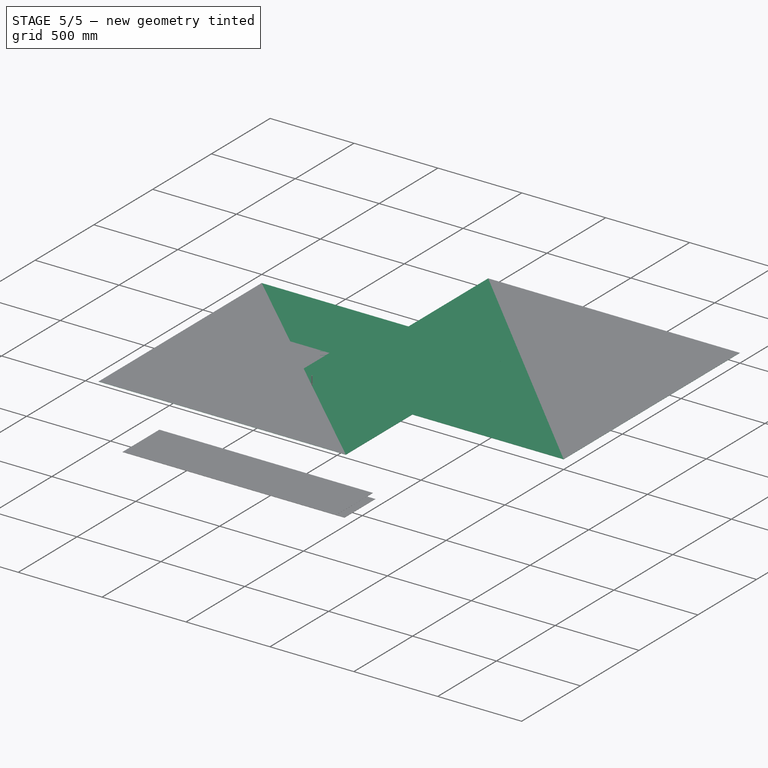
[diagram: stage 5 of 5 — iso view after this stage's code; geometry added in this stage tinted green]
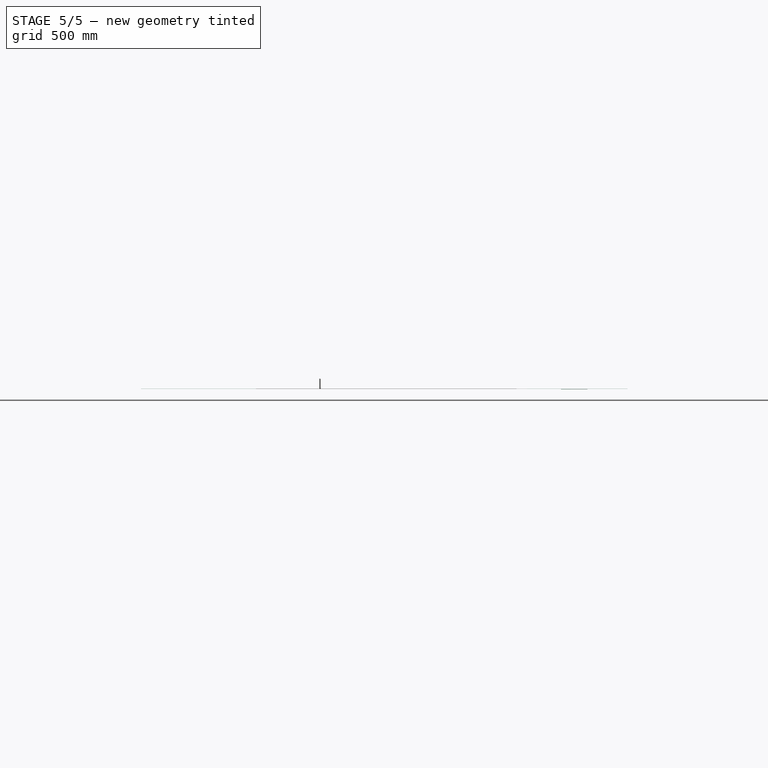
[diagram: stage 5 of 5 — front view after this stage's code; geometry added in this stage tinted green]
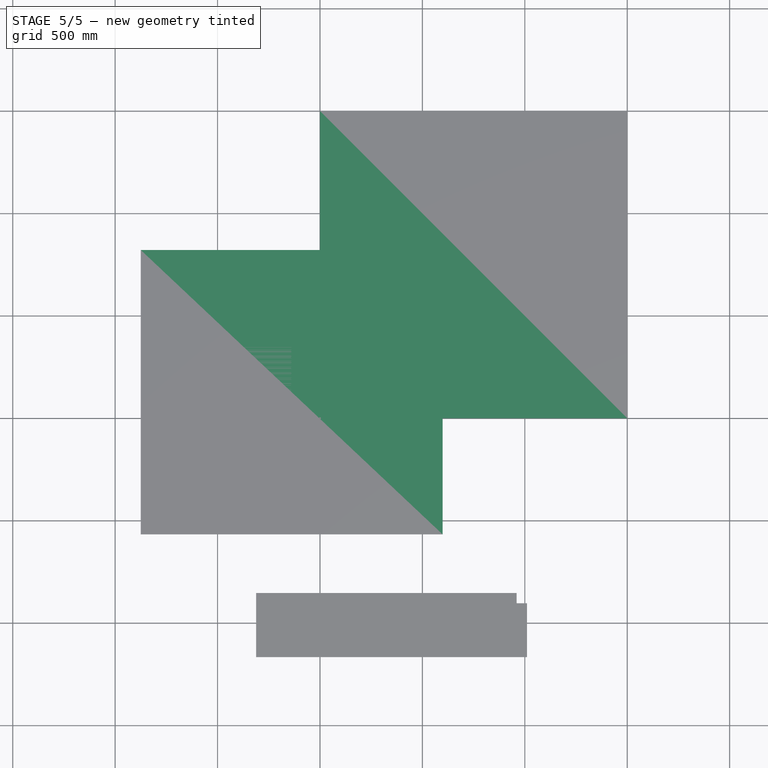
[diagram: stage 5 of 5 — top view after this stage's code; geometry added in this stage tinted green]
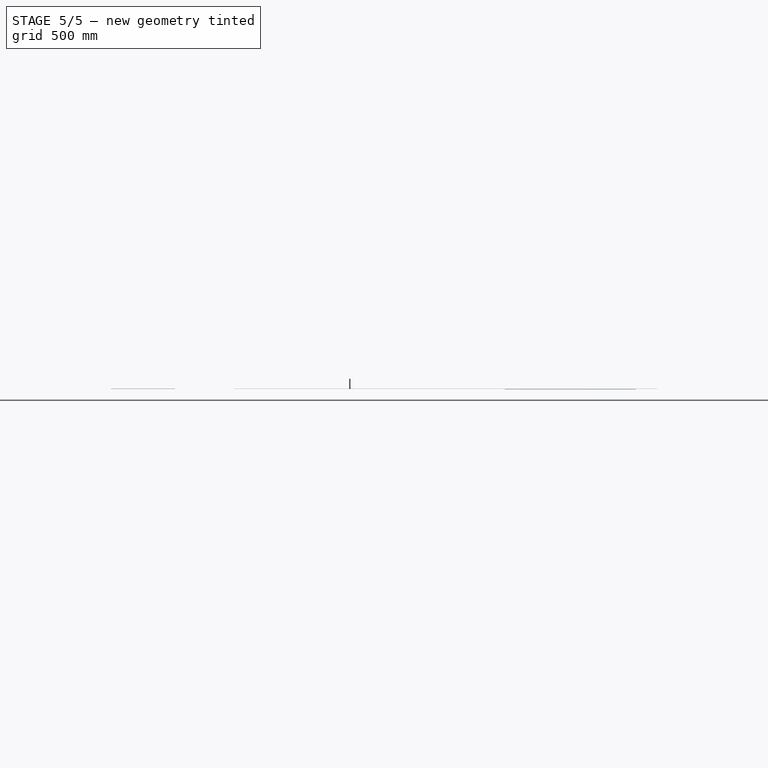
[diagram: stage 5 of 5 — right view after this stage's code; geometry added in this stage tinted green]
FEATURE [Path::FeaturePython] __175mm_Endmill  label="3.175mm Endmill001"  # Path/CAM operation (typed FeaturePython)
  HorizFeed = 33.3333
  HorizRapid = 0
  SpindleDir = 0
  SpindleSpeed = 18000
  Tool = -> ToolBit
  ToolNumber = 1
  VertFeed = 8.33333
  VertRapid = 0
  expr: HorizRapid = SetupSheet.HorizRapid
  expr: VertRapid = SetupSheet.VertRapid
FEATURE [App::DocumentObjectGroup] Tools
  Group = -> [__175mm_Endmill]
FEATURE [Part::FeaturePython] Stock001  # WARN: FeaturePython — macro-defined, semantics opaque (R4)
  Height = 1
  Length = 1500
  StockType = CreateBox
  Width = 1500
FEATURE [Sketcher::SketchObject] Unfold_Sketch_bends010  label="dropper_fix_composit_Unfold_Sketch_bends"
  FullyConstrained = false
  sketch-geometry (10):
    g0: LineSegment StartX=339.082 StartY=150.298 StartZ=0 EndX=339.082 EndY=130.298 EndZ=0
    g1: LineSegment StartX=313.712 StartY=150.298 StartZ=0 EndX=313.712 EndY=130.298 EndZ=0
    g2: LineSegment StartX=-339.082 StartY=150.298 StartZ=0 EndX=-339.082 EndY=130.298 EndZ=0
    g3: LineSegment StartX=-313.712 StartY=150.298 StartZ=0 EndX=-313.712 EndY=130.298 EndZ=0
    g4: LineSegment StartX=313.563 StartY=130.149 StartZ=0 EndX=-313.563 EndY=130.149 EndZ=0
    g5: LineSegment StartX=110.498 StartY=-61.8079 StartZ=0 EndX=310.659 EndY=106.147 EndZ=0
    g6: LineSegment StartX=111.672 StartY=-84.8985 StartZ=0 EndX=111.672 EndY=-64.8985 EndZ=0
    g7: LineSegment StartX=-111.672 StartY=-84.8985 StartZ=0 EndX=-111.672 EndY=-64.8985 EndZ=0
    g8: LineSegment StartX=-105.847 StartY=-64.7492 StartZ=0 EndX=105.847 EndY=-64.7492 EndZ=0
    g9: LineSegment StartX=-310.659 StartY=106.147 StartZ=0 EndX=-110.498 EndY=-61.8079 EndZ=0
FEATURE [Part::Part2DObjectPython] Clone2D006  label="dropper_fix_composit_Unfold_Sketch_bends (2D)"  # Draft 2D object (typed FeaturePython)
  Fuse = false
  Objects = -> [Unfold_Sketch_bends010]
  Scale = (1,1,1)
  expr: Objects = <<dropper_fix_composit_Unfold_Sketch_bends>>._self
FEATURE [App::DocumentObjectGroup] Group009  label="dropper_fix_composit_Group"
  Group = -> [Body006,Clone2D006,Unfold011,Unfold_Sketch_bends010]
FEATURE [Part::Part2DObjectPython] Clone2D010  label="Model-dropper_fix_composit_Unfold_Sketch_bends (2D)"  # Draft 2D object (typed FeaturePython)
  Fuse = false
  Objects = -> [Clone2D006]
  PathResource = Model
  Placement = pos=(1284.81,353.979,1.45e-13) rot=(0,0,1;1.5708rad)
  Scale = (1,1,1)
  expr: Placement = <<Model-dropper_fix_composit_Body>>.Placement
FEATURE [Part::Feature] Unfold012  label="front_shield_Unfold"
  Placement = pos=(0,0,0) rot=(0.57735,0.57735,-0.57735;4.18879rad)
  shape: bbox 129 x 639.1 x 1 mm, 16 faces (baked)
FEATURE [PartDesign::FeatureBase] BaseFeature007
  BaseFeature = -> Unfold012
  Placement = pos=(0,0,0) rot=(0.57735,0.57735,-0.57735;4.18879rad)
  Suppressed = false
  expr: BaseFeature = <<front_shield_Unfold>>._self
  expr: Placement = .BaseFeature.Placement
FEATURE [PartDesign::Body] Body007  label="front_shield_Body"
  Group = -> [BaseFeature007]
  Origin = -> Origin007
  Tip = -> BaseFeature007
FEATURE [App::DocumentObjectGroup] Group010  label="front_shield_Group"
  Group = -> [Body007,Unfold012]
FEATURE [Part::FeaturePython] Clone008  label="Model-front_shield_Body"  # Draft clone (typed FeaturePython)
  AttacherType = Attacher::AttachEngine3D
  Fuse = true
  Objects = -> [Body007]
  PathResource = Model
  Placement = pos=(1306.29,1076.26,-0.7) rot=(0,0,1;0rad)
  Scale = (1,1,1)
FEATURE [Part::Feature] Unfold013  label="back_Unfold"
  Placement = pos=(0,0,0) rot=(0.57735,0.57735,0.57735;2.0944rad)
  shape: bbox 735.3 x 662.1 x 0.3 mm, 49 faces (baked)
FEATURE [PartDesign::FeatureBase] BaseFeature001
  BaseFeature = -> Unfold013
  Placement = pos=(0,0,0) rot=(0.57735,0.57735,0.57735;2.0944rad)
  Suppressed = false
  expr: BaseFeature = <<back_Unfold>>._self
  expr: Placement = .BaseFeature.Placement
FEATURE [PartDesign::Body] Body001  label="back_Body"
  Group = -> [BaseFeature001]
  Origin = -> Origin001
  Tip = -> BaseFeature001
FEATURE [Part::FeaturePython] Clone  label="Model-back_Body"  # Draft clone (typed FeaturePython)
  AttacherType = Attacher::AttachEngine3D
  Fuse = true
  Objects = -> [Body001]
  PathResource = Model
  Placement = pos=(7.4e-14,1064.16,4.5e-14) rot=(0,0,1;0rad)
  Scale = (1,1,1)
FEATURE [App::DocumentObjectGroup] Model
  Group = -> [Clone,Clone001,Clone002,Clone003,Clone004,Clone005,Clone007,Clone008]
FEATURE [Path::FeaturePython] Profile  # Path/CAM operation (typed FeaturePython)
  Active = true
  AreaParams:
    Tolerance = 1e-07
    FitArcs = True
    Simplify = False
    CleanDistance = 0.0
    Accuracy = 0.01
    Unit = 1.0
    MinArcPoints = 4
    MaxArcPoints = 100
    ClipperScale = 10000000.0
    Fill = 0
    Coplanar = 0
    Reorient = True
    Outline = False
    Explode = False
    OpenMode = 0
    Deflection = 0.01
    SubjectFill = 0
    ClipFill = 0
    Offset = -1.5875
    ExtraPass = 0
    Stepover = 0.0
    LastStepover = 0.0
    JoinType = 0
    EndType = 0
    MiterLimit = 2.0
    RoundPrecision = 0.0
    PocketMode = 0
    ToolRadius = 1.0
    PocketExtraOffset = 0.0
    PocketStepover = 0.0
    PocketLastStepover = 0.0
    FromCenter = False
    Angle = 45.0
    AngleShift = 0.0
    Shift = 0.0
    Thicken = False
    SectionCount = -1
    Stepdown = 1.0
    SectionOffset = 0.0
    SectionTolerance = 1e-06
    SectionMode = 2
    Project = False
  Base = -> [Clone003,Clone008,Clone007,Clone005,Clone004,Clone002,Clone001,Clone]
  ClearanceHeight = 6
  CoolantMode = 0
  CycleTime = 00:14:43
  Direction = 1
  FinalDepth = -0.1
  HandleMultipleFeatures = 0
  JoinType = 0
  MiterLimit = 0.1
  OffsetExtra = 0
  OpFinalDepth = 0
  OpStartDepth = 1
  OpStockZMax = 1
  OpStockZMin = 0
  OpToolDiameter = 3.175
  PathParams = {'orientation': 1, 'feedrate': 33.333333333333336, 'feedrate_v': 8.333333333333334, 'verbose': True, 'resume_height': 4.0, 'retraction': 6.0, 'return_end': True, 'preamble': False, 'start': Vector (115.0470492908223, 339.9867407769983, 6.0)}
  SafeHeight = 4
  Side = 0
  SplitArcs = false
  StartDepth = 3
  StartPoint = (0,0,0)
  StepDown = 4
  ToolController = -> __175mm_Endmill
  UseComp = true
  UseStartPoint = false
  processCircles = true
  processHoles = true
  processPerimeter = false
  expr: ClearanceHeight = OpStockZMax + SetupSheet.ClearanceHeightOffset
  expr: FinalDepth = -0.1 mm
  expr: SafeHeight = OpStockZMax + SetupSheet.SafeHeightOffset
  expr: StartDepth = 3 mm
  expr: StepDown = 4 mm
FEATURE [Path::FeaturePython] Profile001  # Path/CAM operation (typed FeaturePython)
  Active = true
  AreaParams:
    Tolerance = 1e-07
    FitArcs = True
    Simplify = False
    CleanDistance = 0.0
    Accuracy = 0.01
    Unit = 1.0
    MinArcPoints = 4
    MaxArcPoints = 100
    ClipperScale = 10000000.0
    Fill = 0
    Coplanar = 0
    Reorient = True
    Outline = False
    Explode = False
    OpenMode = 0
    Deflection = 0.01
    SubjectFill = 0
    ClipFill = 0
    Offset = 1.5875
    ExtraPass = 0
    Stepover = 0.0
    LastStepover = 0.0
    JoinType = 0
    EndType = 0
    MiterLimit = 2.0
    RoundPrecision = 0.0
    PocketMode = 0
    ToolRadius = 1.0
    PocketExtraOffset = 0.0
    PocketStepover = 0.0
    PocketLastStepover = 0.0
    FromCenter = False
    Angle = 45.0
    AngleShift = 0.0
    Shift = 0.0
    Thicken = False
    SectionCount = -1
    Stepdown = 1.0
    SectionOffset = 0.0
    SectionTolerance = 1e-06
    SectionMode = 2
    Project = False
  Base = -> [Clone003,Clone008,Clone007,Clone005,Clone004,Clone002,Clone001,Clone]
  ClearanceHeight = 6
  CoolantMode = 0
  CycleTime = 00:09:35
  Direction = 1
  FinalDepth = -0.1
  HandleMultipleFeatures = 0
  JoinType = 0
  MiterLimit = 0.1
  OffsetExtra = 0
  OpFinalDepth = 0
  OpStartDepth = 1
  OpStockZMax = 1
  OpStockZMin = 0
  OpToolDiameter = 3.175
  PathParams = {'orientation': 0, 'feedrate': 33.333333333333336, 'feedrate_v': 8.333333333333334, 'verbose': True, 'resume_height': 4.0, 'retraction': 6.0, 'return_end': True, 'preamble': False, 'start': Vector (736.8851111631947, 770.9453124241791, 6.0)}
  SafeHeight = 4
  Side = 0
  SplitArcs = false
  StartDepth = 3
  StartPoint = (0,0,0)
  StepDown = 4
  ToolController = -> __175mm_Endmill
  UseComp = true
  UseStartPoint = false
  processCircles = false
  processHoles = false
  processPerimeter = true
  expr: Base = <<Profile>>.Base
  expr: ClearanceHeight = OpStockZMax + SetupSheet.ClearanceHeightOffset
  expr: FinalDepth = -0.1 mm
  expr: SafeHeight = OpStockZMax + SetupSheet.SafeHeightOffset
  expr: StartDepth = 3 mm
  expr: StepDown = 4 mm
FEATURE [Sketcher::SketchObject] Unfold_Sketch_bends011  label="back_Unfold_Sketch_bends"
  FullyConstrained = false
  sketch-geometry (3):
    g0: LineSegment StartX=715 StartY=316.312 StartZ=0 EndX=0 EndY=316.312 EndZ=0
    g1: LineSegment StartX=715 StartY=-316.312 StartZ=0 EndX=0 EndY=-316.312 EndZ=0
    g2: LineSegment StartX=715.149 StartY=-313.163 StartZ=0 EndX=715.149 EndY=313.163 EndZ=0
FEATURE [Part::Part2DObjectPython] Clone2D001  label="back_Unfold_Sketch_bends (2D)"  # Draft 2D object (typed FeaturePython)
  Fuse = false
  Objects = -> [Unfold_Sketch_bends011]
  Scale = (1,1,1)
  expr: Objects = <<back_Unfold_Sketch_bends>>._self
FEATURE [App::DocumentObjectGroup] Group004  label="back_Group"
  Group = -> [Body001,Clone2D001,Unfold013,Unfold_Sketch_bends011]
FEATURE [App::DocumentObjectGroup] Group001  label="unfolds"
  Group = -> [Group003,Group004,Group005,Group006,Group007,Group008,Group009,Group010]
FEATURE [Part::Part2DObjectPython] Clone2D007  label="Model-back_Unfold_Sketch_bends (2D)"  # Draft 2D object (typed FeaturePython)
  Fuse = false
  Objects = -> [Clone2D001]
  PathResource = Model
  Placement = pos=(7.4e-14,1064.16,4.5e-14) rot=(0,0,1;0rad)
  Scale = (1,1,1)
  expr: Placement = <<Model-back_Body>>.Placement
FEATURE [App::DocumentObjectGroup] Model001
  Group = -> [Clone2D007,Clone2D008,Clone2D009,Clone009,Clone2D010,Clone2D011,Clone2D012]
FEATURE [Part::FeaturePython] Stock  # WARN: FeaturePython — macro-defined, semantics opaque (R4)
  Base = -> Model001
  ExtXneg = 1
  ExtXpos = 1
  ExtYneg = 1
  ExtYpos = 1
  ExtZneg = 0
  ExtZpos = 1
  Placement = pos=(-873.898,-565.654,0) rot=(0,0,1;0rad)
  StockType = FromBase
FEATURE [Path::FeaturePython] Engrave  # Path/CAM operation (typed FeaturePython)
  Active = true
  BaseShapes = -> [Clone2D007,Clone2D008,Clone2D009,Clone009,Clone2D010,Clone2D011,Clone2D012]
  ClearanceHeight = 6
  CoolantMode = 0
  CycleTime = 00:10:28
  FinalDepth = 0.5
  OpFinalDepth = -10
  OpStartDepth = 1.449e-13
  OpStockZMax = 1
  OpStockZMin = 0
  OpToolDiameter = 10
  SafeHeight = 4
  StartDepth = 3
  StartVertex = 0
  StepDown = 10
  ToolController = -> NZV6109015
  expr: BaseShapes = <<Model001>>.Group
  expr: ClearanceHeight = OpStockZMax + SetupSheet001.ClearanceHeightOffset
  expr: SafeHeight = OpStockZMax + SetupSheet001.SafeHeightOffset
  expr: StartDepth = 3 mm
  expr: StepDown = OpToolDiameter
FEATURE [App::DocumentObjectGroup] Operations001
  Group = -> [Engrave]
FEATURE [Path::FeaturePython] Job001  # Path/CAM operation (typed FeaturePython)
  CycleTime = 00:10:28
  Fixtures = G54
  GeometryTolerance = 0.01
  JobType = 0
  LastPostProcessDate = 2024-04-03 13:09:29.303673
  LastPostProcessOutput = <path>
  Model = -> Model001
  Operations = -> Operations001
  OrderOutputBy = 0
  PostProcessor = 3
  PostProcessorOutputFile = <path>/%j.tap
  SetupSheet = -> SetupSheet001
  SplitOutput = false
  Stock = -> Stock
  Tools = -> Tools001
FEATURE [Path::FeaturePython] Deburr  # Path/CAM operation (typed FeaturePython)
  Active = true
  Base = -> [Clone002]
  ClearanceHeight = 6
  CoolantMode = 0
  CycleTime = 00:00:57
  Direction = 0
  EntryPoint = 0
  ExtraDepth = -1
  Join = 0
  OpStockZMax = 1
  OpStockZMin = 0
  OpToolDiameter = 3.175
  SafeHeight = 4
  Side = 1
  StartDepth = 1
  StepDown = 0
  ToolController = -> __175mm_Endmill
  Width = 1.5875
  expr: ClearanceHeight = OpStockZMax + SetupSheet.ClearanceHeightOffset
  expr: SafeHeight = OpStockZMax + SetupSheet.SafeHeightOffset
  expr: StepDown = 0 mm
FEATURE [App::DocumentObjectGroup] Operations
  Group = -> [Profile,Profile001,Deburr]
FEATURE [Path::FeaturePython] Job  # Path/CAM operation (typed FeaturePython)
  CycleTime = 00:25:15
  Fixtures = G54
  GeometryTolerance = 0.01
  JobType = 0
  LastPostProcessDate = 2024-04-03 13:08:48.864378
  LastPostProcessOutput = <path> \n/mnt/flash/Job-1.tap
  Model = -> Model
  Operations = -> Operations
  OrderOutputBy = 2
  PostProcessor = 3
  PostProcessorOutputFile = <path>/%j.tap
  SetupSheet = -> SetupSheet
  SplitOutput = true
  Stock = -> Stock001
  Tools = -> Tools
FEATURE [App::DocumentObjectGroup] Group002  label="jobs"
  Group = -> [Job,Job001,Job002,Job003,Job004]
note: 15 file-system paths scrubbed to <path> (originals preserved in the JSON sidecar)

RESOLVED EXTERNAL PARTS (link-assembly join: the EXTERNAL_REF files above that resolve inside this repo's crawl, each included once):
---- part composit_stand9.FCStd = doc fcstd_83de064f94ce (297389 chars; too large to inline — full recipe in that document) ----
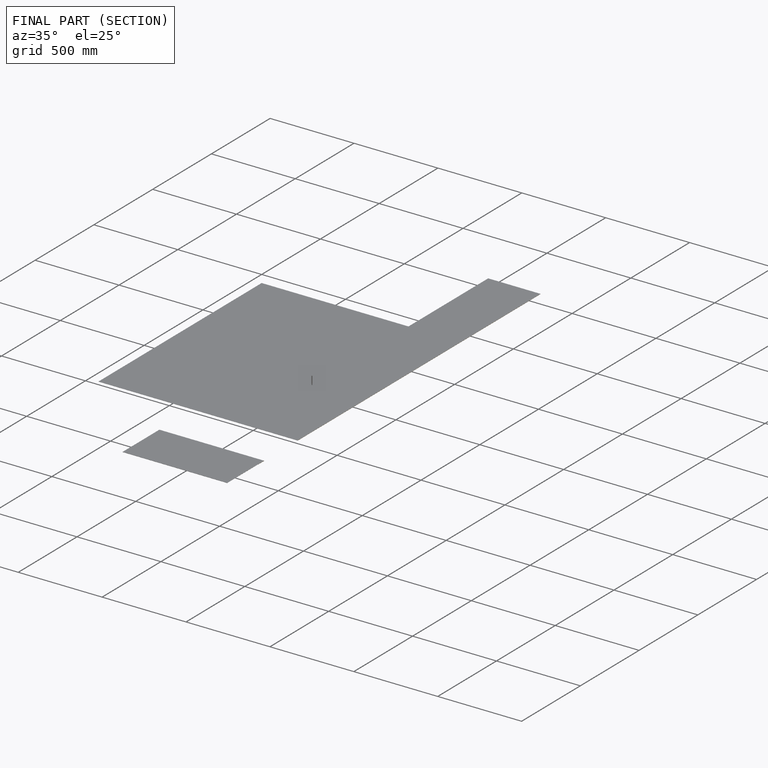
[diagram: finished part — half-section view (interior)]
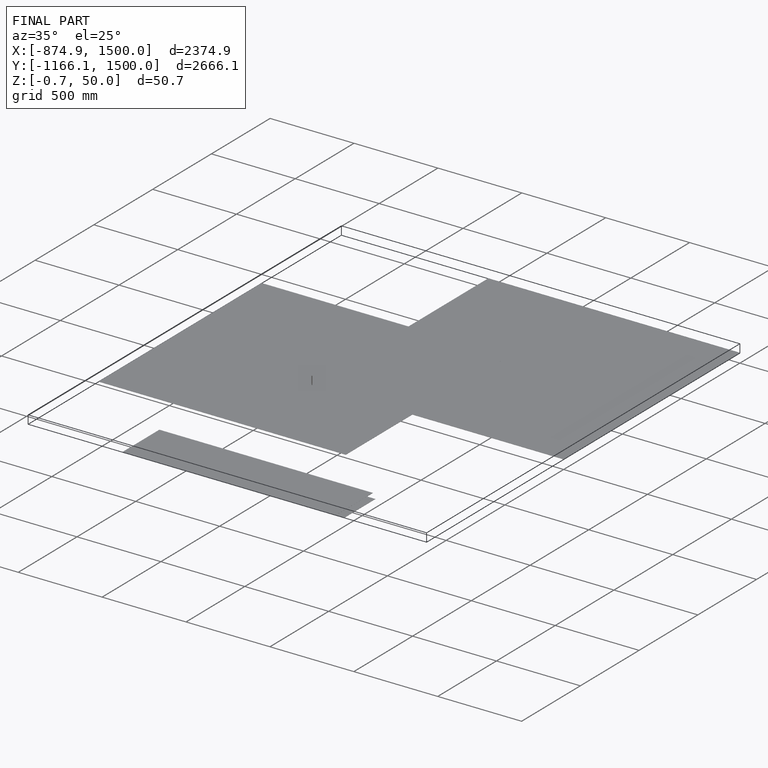
[diagram: finished part — iso view with bounding-box wireframe]
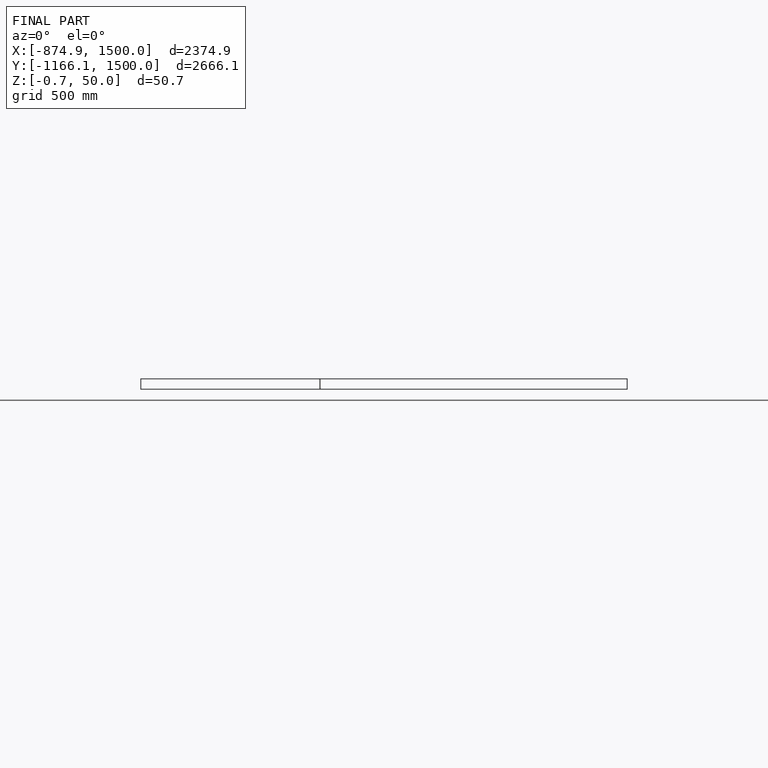
[diagram: finished part — front view with bounding-box wireframe]
